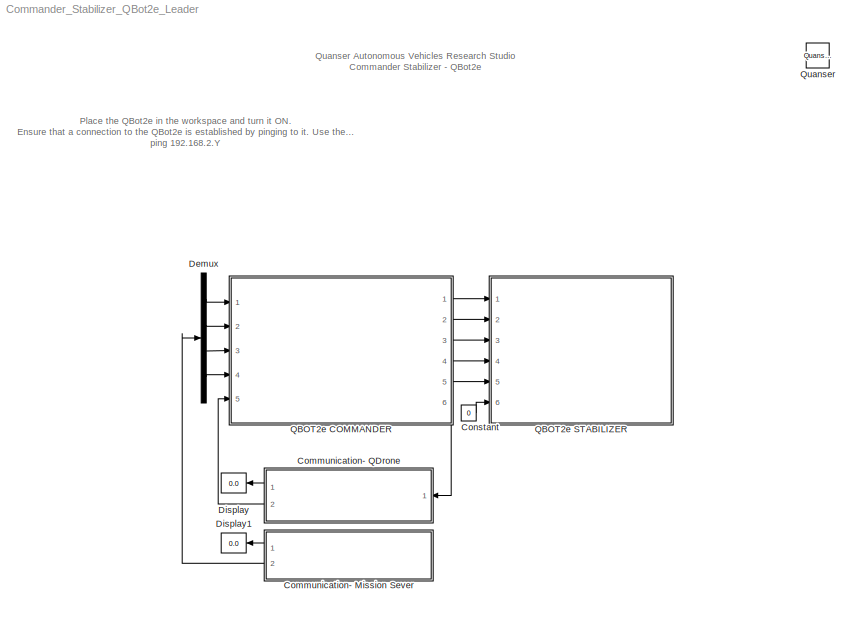
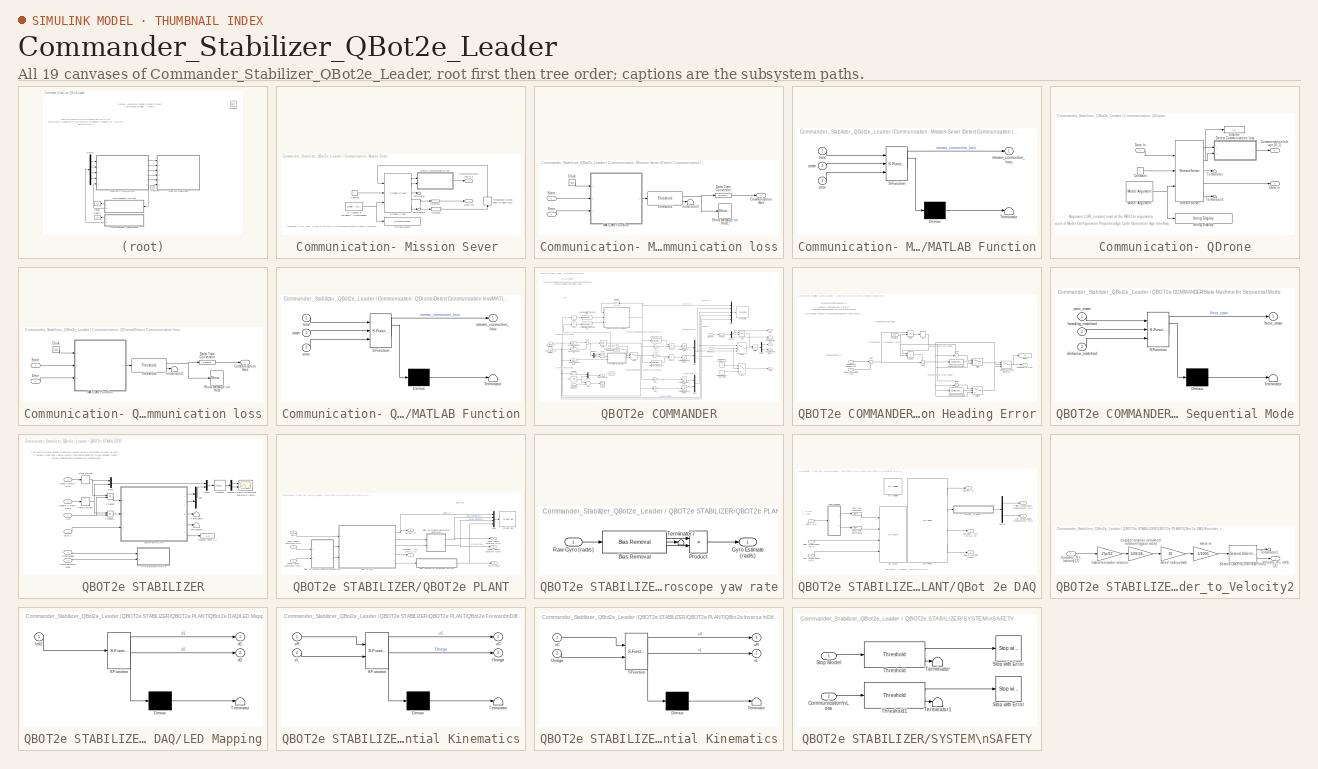
[diagram: thumbnail index - all 19 canvases of the model, root first then tree order]
MODEL Commander_Stabilizer_QBot2e_Leader
KIND model
BLOCK [SubSystem] Communication- Mission Sever 
  Ports = [0, 2]
  RequestExecContextInheritance = off
  SID = 394
BLOCK [Outport] Communication- Mission Sever /Communication\nIssue (0,1)
  IconDisplay = Port number
  SID = 6540
BLOCK [Constant] Communication- Mission Sever /Constant
  SID = 2649
BLOCK [Outport] Communication- Mission Sever /Data Out
  IconDisplay = Port number
  Port = 2
  SID = 6542
BLOCK [SubSystem] Communication- Mission Sever /Detect Communication loss
  Ports = [2, 1]
  RequestExecContextInheritance = off
  SID = 6556
BLOCK [Clock] Communication- Mission Sever /Detect Communication loss/Clock
  SID = 6476
BLOCK [Outport] Communication- Mission Sever /Detect Communication loss/Communication Issue
  IconDisplay = Port number
  SID = 6560
BLOCK [DataTypeConversion] Communication- Mission Sever /Detect Communication loss/Data Type Conversion
  RndMeth = Floor
  SID = 5201
  SaturateOnIntegerOverflow = off
BLOCK [Inport] Communication- Mission Sever /Detect Communication loss/Error
  IconDisplay = Port number
  Port = 2
  SID = 6558
BLOCK [SubSystem] Communication- Mission Sever /Detect Communication loss/MATLAB Function
  ErrorFcn = Stateflow.Translate.translate
  PermitHierarchicalResolution = ExplicitOnly
  Ports = [3, 1]
  RequestExecContextInheritance = off
  SFBlockType = MATLAB Function
  SID = 6473
  TreatAsAtomicUnit = on
BLOCK [Demux] Communication- Mission Sever /Detect Communication loss/MATLAB Function/ Demux 
  DisplayOption = bar
  Outputs = 1
  Ports = [1, 1]
  SID = 6473::68
BLOCK [S-Function] Communication- Mission Sever /Detect Communication loss/MATLAB Function/ SFunction 
  EnableBusSupport = off
  FunctionName = sf_sfun
  PortCounts = [3 2]
  Ports = [3, 2]
  SFcnIsStateOwnerBlock = off
  SFunctionDeploymentMode = off
  SID = 6473::67
  Tag = Stateflow S-Function Commander_Stabilizer_QBot2e_Leader 3
BLOCK [Terminator] Communication- Mission Sever /Detect Communication loss/MATLAB Function/ Terminator 
  SID = 6473::69
BLOCK [Inport] Communication- Mission Sever /Detect Communication loss/MATLAB Function/error
  IconDisplay = Port number
  Port = 3
  SID = 6473::23
BLOCK [Inport] Communication- Mission Sever /Detect Communication loss/MATLAB Function/state
  IconDisplay = Port number
  Port = 2
  SID = 6473::22
BLOCK [Outport] Communication- Mission Sever /Detect Communication loss/MATLAB Function/stream_connection_loss
  IconDisplay = Port number
  SID = 6473::5
BLOCK [Inport] Communication- Mission Sever /Detect Communication loss/MATLAB Function/time
  IconDisplay = Port number
  SID = 6473::1
BLOCK [Reference] Communication- Mission Sever /Detect Communication loss/Show Message on Host1  REF=quarc_library/Sinks/Error Handling/Show Message on Host
  AttributesFormatString = \"%<message>\"
  MultiThreadCoSim = auto
  Ports = [1]
  SID = 8053
  SourceBlock = quarc_library/Sinks/Error Handling/Show Message on Host
  SourceProductName = QUARC Targets
  SourceType = Host Show Message
  message = Not connection between QBot2e and Mission Server
  message_icon = Warning
  message_type = Fixed error message
BLOCK [Inport] Communication- Mission Sever /Detect Communication loss/State
  IconDisplay = Port number
  SID = 6557
BLOCK [Terminator] Communication- Mission Sever /Detect Communication loss/Terminator2
  SID = 5193
BLOCK [Reference] Communication- Mission Sever /Detect Communication loss/Threshold  REF=quarc_library/Discontinuities/Threshold
  Ports = [1, 2]
  RTWMemSecDataConstants = Inherit from model
  RTWMemSecDataInternal = Inherit from model
  RTWMemSecDataParameters = Inherit from model
  RTWMemSecFuncExecute = Inherit from model
  RTWMemSecFuncInitTerm = Inherit from model
  SID = 5195
  SourceBlock = quarc_library/Discontinuities/Threshold
  SourceProductName = QUARC Targets
  SourceType = Threshold
  duration = 0.1
  operator = >=
  param_src = Specify via dialog
  threshold = 0.5
BLOCK [Reference] Communication- Mission Sever /IP Address of \nSupervisory Model\n(Mission Operator//Commander)  REF=quarc_library/Sources/Signals/Model Argument
  AttributesFormatString = (-%<argument_name>)
  MultiThreadCoSim = auto
  Ports = [0, 1]
  SID = 5177
  SourceBlock = quarc_library/Sources/Signals/Model Argument
  SourceProductName = QUARC Targets
  SourceType = Model Argument
  argument_name = URI_Host
  data_type = char
  data_type_mode = Specify via dialog
  default_value = 0
  has_value = on
  max_length = 80
  variable_size = off
BLOCK [Selector] Communication- Mission Sever /Selector
  IndexOptions = Index vector (dialog)
  Indices = [14]
  InputPortWidth = 14
  OutputSizes = 1
  Ports = [1, 1]
  SID = 8084
BLOCK [Selector] Communication- Mission Sever /Selector1
  IndexOptions = Index vector (dialog)
  Indices = [1:13]
  InputPortWidth = 14
  OutputSizes = 1
  Ports = [1, 1]
  SID = 8100
BLOCK [Reference] Communication- Mission Sever /Stream Client  REF=quarc_library/Communications/Basic/Stream Client
  MultiThreadCoSim = auto
  Ports = [3, 5]
  SID = 410
  SourceBlock = quarc_library/Communications/Basic/Stream Client
  SourceProductName = The database <userpath><path> is locked, or a table in the database is locked. (database is locked)
  SourceType = Stream Client
  active = off
  apply_uri_to_all_configs = on
  byte_order = little endian (Intel - LSB first)
  data_type = double
  default_value = zeros(1,14)
  implementation = Use blocking I/O in a separate thread
  max_dimensions = -1
  optimization = Minimum latency
  receive_buffer_size = 1460
  receive_dimensions = off
  receive_fifo_size = 1
  receive_options = Receive most recent data
  receive_priority = 0
  sample_time = qc_get_step_size
  send_buffer_size = 1460
  send_dimensions = off
  send_fifo_size = 1
  send_options = Send most recent data
  send_priority = 0
  type_expr = BusObject
  uri = tcpip://localhost:18999
  uri_source = External input port
BLOCK [Reference] Communication- Mission Sever /String Display  REF=quarc_library/Strings/String Display
  MultiThreadCoSim = auto
  Ports = [1]
  SID = 5178
  SourceBlock = quarc_library/Strings/String Display
  SourceProductName = QUARC Targets
  SourceType = String Display
  alignment = center
  display_mode = Single line
  sample_time = -1
  use_new = off
BLOCK [Terminator] Communication- Mission Sever /Terminator
  SID = 411
BLOCK [Terminator] Communication- Mission Sever /Terminator1
  SID = 5205
BLOCK [Memory] Communication- Mission Sever /Timestamp to send back \nfor loopback time 
  SID = 8085
BLOCK [SubSystem] Communication- QDrone
  Ports = [1, 2]
  RequestExecContextInheritance = off
  SID = 8017
BLOCK [Outport] Communication- QDrone/Communication\nIssue (0,1)
  IconDisplay = Port number
  SID = 8035
BLOCK [Constant] Communication- QDrone/Constant
  SID = 8019
BLOCK [Inport] Communication- QDrone/Data In
  IconDisplay = Port number
  SID = 8018
BLOCK [Outport] Communication- QDrone/Data in
  IconDisplay = Port number
  Port = 2
  SID = 8102
BLOCK [SubSystem] Communication- QDrone/Detect Communication loss
  Ports = [2, 1]
  RequestExecContextInheritance = off
  SID = 8021
BLOCK [Clock] Communication- QDrone/Detect Communication loss/Clock
  SID = 8024
BLOCK [Outport] Communication- QDrone/Detect Communication loss/Communication Issue
  IconDisplay = Port number
  SID = 8029
BLOCK [DataTypeConversion] Communication- QDrone/Detect Communication loss/Data Type Conversion
  RndMeth = Floor
  SID = 8025
  SaturateOnIntegerOverflow = off
BLOCK [Inport] Communication- QDrone/Detect Communication loss/Error
  IconDisplay = Port number
  Port = 2
  SID = 8023
BLOCK [SubSystem] Communication- QDrone/Detect Communication loss/MATLAB Function
  ErrorFcn = Stateflow.Translate.translate
  PermitHierarchicalResolution = ExplicitOnly
  Ports = [3, 1]
  RequestExecContextInheritance = off
  SFBlockType = MATLAB Function
  SID = 8026
  TreatAsAtomicUnit = on
BLOCK [Demux] Communication- QDrone/Detect Communication loss/MATLAB Function/ Demux 
  DisplayOption = bar
  Outputs = 1
  Ports = [1, 1]
  SID = 8026::68
BLOCK [S-Function] Communication- QDrone/Detect Communication loss/MATLAB Function/ SFunction 
  EnableBusSupport = off
  FunctionName = sf_sfun
  PortCounts = [3 2]
  Ports = [3, 2]
  SFcnIsStateOwnerBlock = off
  SFunctionDeploymentMode = off
  SID = 8026::67
  Tag = Stateflow S-Function Commander_Stabilizer_QBot2e_Leader 5
BLOCK [Terminator] Communication- QDrone/Detect Communication loss/MATLAB Function/ Terminator 
  SID = 8026::69
BLOCK [Inport] Communication- QDrone/Detect Communication loss/MATLAB Function/error
  IconDisplay = Port number
  Port = 3
  SID = 8026::23
BLOCK [Inport] Communication- QDrone/Detect Communication loss/MATLAB Function/state
  IconDisplay = Port number
  Port = 2
  SID = 8026::22
BLOCK [Outport] Communication- QDrone/Detect Communication loss/MATLAB Function/stream_connection_loss
  IconDisplay = Port number
  SID = 8026::5
BLOCK [Inport] Communication- QDrone/Detect Communication loss/MATLAB Function/time
  IconDisplay = Port number
  SID = 8026::1
BLOCK [Reference] Communication- QDrone/Detect Communication loss/Show Message on Host  REF=quarc_library/Sinks/Error Handling/Show Message on Host
  AttributesFormatString = \"%<message>\"
  MultiThreadCoSim = auto
  Ports = [1]
  SID = 8051
  SourceBlock = quarc_library/Sinks/Error Handling/Show Message on Host
  SourceProductName = QUARC Targets
  SourceType = Host Show Message
  message = No connection between QBot2e and QDrone
  message_icon = Warning
  message_type = Fixed error message
BLOCK [Inport] Communication- QDrone/Detect Communication loss/State
  IconDisplay = Port number
  SID = 8022
BLOCK [Terminator] Communication- QDrone/Detect Communication loss/Terminator2
  SID = 8027
BLOCK [Reference] Communication- QDrone/Detect Communication loss/Threshold  REF=quarc_library/Discontinuities/Threshold
  Ports = [1, 2]
  RTWMemSecDataConstants = Inherit from model
  RTWMemSecDataInternal = Inherit from model
  RTWMemSecDataParameters = Inherit from model
  RTWMemSecFuncExecute = Inherit from model
  RTWMemSecFuncInitTerm = Inherit from model
  SID = 8028
  SourceBlock = quarc_library/Discontinuities/Threshold
  SourceProductName = QUARC Targets
  SourceType = Threshold
  duration = 0.1
  operator = >=
  param_src = Specify via dialog
  threshold = 0.5
BLOCK [Display] Communication- QDrone/Display
  Decimation = 1
  Ports = [1]
  SID = 8089
BLOCK [Reference] Communication- QDrone/Model Argument  REF=quarc_library/Sources/Signals/Model Argument
  AttributesFormatString = (-%<argument_name>)
  MultiThreadCoSim = auto
  Ports = [0, 1]
  SID = 8112
  SourceBlock = quarc_library/Sources/Signals/Model Argument
  SourceProductName = QUARC Targets
  SourceType = Model Argument
  argument_name = URI_Leader
  data_type = char
  data_type_mode = Specify via dialog
  default_value = 0
  has_value = on
  max_length = 80
  variable_size = off
BLOCK [Reference] Communication- QDrone/Stream Server  REF=quarc_library/Communications/Basic/Stream Server
  MultiThreadCoSim = auto
  Ports = [3, 5]
  SID = 8064
  SourceBlock = quarc_library/Communications/Basic/Stream Server
  SourceProductName = QUARC Targets
  SourceType = Stream Server
  active = off
  apply_uri_to_all_configs = on
  byte_order = little endian (Intel - LSB first)
  data_type = Inherited via back propagation
  default_value = zeros(1,1)
  implementation = Use blocking I/O in a separate thread
  max_dimensions = -1
  optimization = Minimum latency
  receive_buffer_size = 1460
  receive_dimensions = off
  receive_fifo_size = 1000
  receive_options = Receive most recent data
  receive_priority = 0
  sample_time = qc_get_step_size
  send_buffer_size = 1460
  send_dimensions = off
  send_fifo_size = 1000
  send_options = Send most recent data
  send_priority = 0
  type_expr = BusObject
  uri = tcpip://localhost:18001
  uri_source = External input port
BLOCK [Reference] Communication- QDrone/String Display   REF=quarc_library/Strings/String Display
  MultiThreadCoSim = auto
  Ports = [1]
  SID = 8114
  SourceBlock = quarc_library/Strings/String Display
  SourceProductName = QUARC Targets
  SourceType = String Display
  alignment = center
  display_mode = Single line
  sample_time = -1
  use_new = off
BLOCK [Terminator] Communication- QDrone/Terminator
  SID = 8033
BLOCK [Terminator] Communication- QDrone/Terminator1
  SID = 8034
BLOCK [Constant] Constant
  SID = 8012
  Value = 0
BLOCK [Demux] Demux
  DisplayOption = bar
  Outputs = [ 4 4 4 1]
  Ports = [1, 4]
  SID = 8002
BLOCK [Display] Display
  Decimation = 1
  Ports = [1]
  SID = 8043
BLOCK [Display] Display1
  Decimation = 1
  Ports = [1]
  SID = 8058
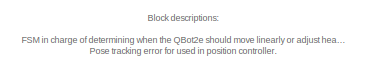
[diagram: QBOT2e COMMANDER - part 1/2, top left region]
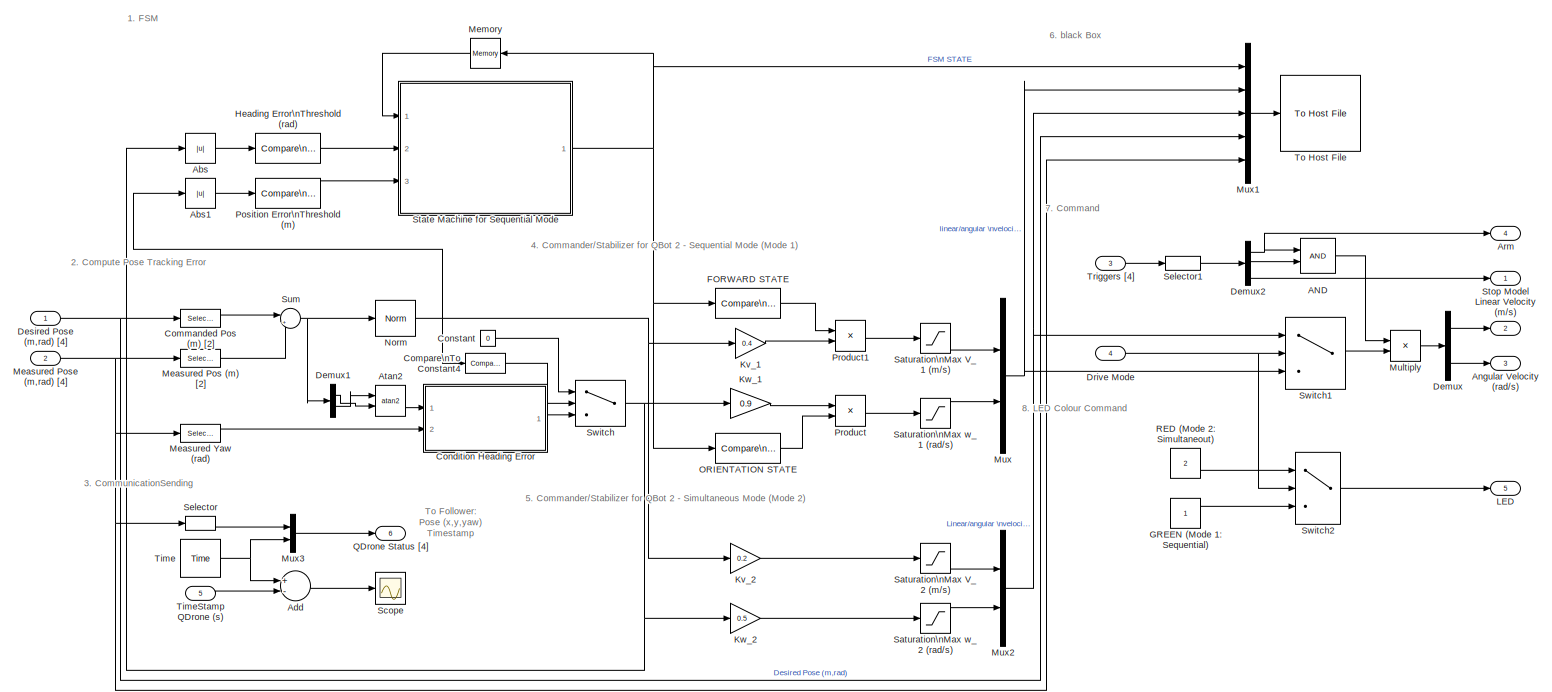
[diagram: QBOT2e COMMANDER - part 2/2, most of the canvas]
BLOCK [SubSystem] QBOT2e COMMANDER
  Ports = [5, 6]
  RequestExecContextInheritance = off
  SID = 7905
BLOCK [Logic] QBOT2e COMMANDER/AND
  AllPortsSameDT = off
  OutDataTypeStr = boolean
  Ports = [2, 1]
  SID = 8056
BLOCK [Abs] QBOT2e COMMANDER/Abs
  SID = 7932
  SaturateOnIntegerOverflow = off
BLOCK [Abs] QBOT2e COMMANDER/Abs1
  SID = 7933
  SaturateOnIntegerOverflow = off
BLOCK [Sum] QBOT2e COMMANDER/Add
  InputSameDT = off
  Inputs = +-
  OutDataTypeStr = Inherit: Inherit via internal rule
  Ports = [2, 1]
  SID = 8104
  SaturateOnIntegerOverflow = off
BLOCK [Outport] QBOT2e COMMANDER/Angular Velocity (rad//s)
  IconDisplay = Port number
  Port = 3
  SID = 7909
BLOCK [Outport] QBOT2e COMMANDER/Arm
  IconDisplay = Port number
  Port = 4
  SID = 8016
BLOCK [Trigonometry] QBOT2e COMMANDER/Atan2
  Operator = atan2
  Ports = [2, 1]
  SID = 7938
BLOCK [Selector] QBOT2e COMMANDER/Commanded Pos (m) [2]
  IndexOptions = Index vector (dialog)
  Indices = [1,2]
  InputPortWidth = 4
  OutputSizes = 1
  Ports = [1, 1]
  SID = 7939
BLOCK [Reference] QBOT2e COMMANDER/Compare\nTo Constant4  REF=simulink/Logic and Bit\nOperations/Compare\nTo Constant
  OutDataTypeStr = uint8
  Ports = [1, 1]
  RTWMemSecDataConstants = Inherit from model
  RTWMemSecDataInternal = Inherit from model
  RTWMemSecDataParameters = Inherit from model
  RTWMemSecFuncExecute = Inherit from model
  RTWMemSecFuncInitTerm = Inherit from model
  SID = 7940
  SourceBlock = simulink/Logic and Bit\nOperations/Compare\nTo Constant
  SourceProductBaseCode = SL
  SourceType = Compare To Constant
  ZeroCross = on
  const = 0.05
  relop = <=
BLOCK [SubSystem] QBOT2e COMMANDER/Condition Heading Error
  Ports = [2, 1]
  RequestExecContextInheritance = off
  SID = 7941
BLOCK [Inport] QBOT2e COMMANDER/Condition Heading Error/Commanded Heading (rad)
  IconDisplay = Port number
  SID = 7942
BLOCK [Reference] QBOT2e COMMANDER/Condition Heading Error/Compare\nTo Constant  REF=simulink/Logic and Bit\nOperations/Compare\nTo Constant
  OutDataTypeStr = boolean
  Ports = [1, 1]
  RTWMemSecDataConstants = Inherit from model
  RTWMemSecDataInternal = Inherit from model
  RTWMemSecDataParameters = Inherit from model
  RTWMemSecFuncExecute = Inherit from model
  RTWMemSecFuncInitTerm = Inherit from model
  SID = 7944
  SourceBlock = simulink/Logic and Bit\nOperations/Compare\nTo Constant
  SourceProductBaseCode = SL
  SourceType = Compare To Constant
  ZeroCross = on
  const = pi
  relop = >=
BLOCK [Reference] QBOT2e COMMANDER/Condition Heading Error/Compare\nTo Constant1  REF=simulink/Logic and Bit\nOperations/Compare\nTo Constant
  OutDataTypeStr = boolean
  Ports = [1, 1]
  RTWMemSecDataConstants = Inherit from model
  RTWMemSecDataInternal = Inherit from model
  RTWMemSecDataParameters = Inherit from model
  RTWMemSecFuncExecute = Inherit from model
  RTWMemSecFuncInitTerm = Inherit from model
  SID = 7945
  SourceBlock = simulink/Logic and Bit\nOperations/Compare\nTo Constant
  SourceProductBaseCode = SL
  SourceType = Compare To Constant
  ZeroCross = on
  const = -pi
  relop = <=
BLOCK [Constant] QBOT2e COMMANDER/Condition Heading Error/Constant
  SID = 7946
  Value = 2*pi
BLOCK [Display] QBOT2e COMMANDER/Condition Heading Error/Display
  Decimation = 1
  Ports = [1]
  SID = 8071
BLOCK [Product] QBOT2e COMMANDER/Condition Heading Error/Divide
  InputSameDT = off
  Inputs = */
  OutDataTypeStr = Inherit: Inherit via internal rule
  Ports = [2, 1]
  RndMeth = Floor
  SID = 7947
  SaturateOnIntegerOverflow = off
BLOCK [Rounding] QBOT2e COMMANDER/Condition Heading Error/Fix
  Operator = fix
  SID = 7948
BLOCK [Outport] QBOT2e COMMANDER/Condition Heading Error/Heading Error (rad)
  IconDisplay = Port number
  SID = 7957
BLOCK [Inport] QBOT2e COMMANDER/Condition Heading Error/Measured Heading (rad)
  IconDisplay = Port number
  Port = 2
  SID = 7943
BLOCK [Product] QBOT2e COMMANDER/Condition Heading Error/Product
  InputSameDT = off
  OutDataTypeStr = Inherit: Inherit via internal rule
  Ports = [2, 1]
  RndMeth = Floor
  SID = 7949
  SaturateOnIntegerOverflow = off
BLOCK [Switch] QBOT2e COMMANDER/Condition Heading Error/Select Proper\nHeading Error
  Criteria = u2 > Threshold
  InputSameDT = off
  SID = 7950
  SaturateOnIntegerOverflow = off
BLOCK [Sum] QBOT2e COMMANDER/Condition Heading Error/Sum
  IconShape = round
  InputSameDT = off
  Inputs = |+-
  OutDataTypeStr = Inherit: Inherit via internal rule
  Ports = [2, 1]
  SID = 7951
  SaturateOnIntegerOverflow = off
BLOCK [Sum] QBOT2e COMMANDER/Condition Heading Error/Sum1
  IconShape = round
  InputSameDT = off
  Inputs = -+|
  OutDataTypeStr = Inherit: Inherit via internal rule
  Ports = [2, 1]
  SID = 7952
  SaturateOnIntegerOverflow = off
BLOCK [Sum] QBOT2e COMMANDER/Condition Heading Error/Sum2
  IconShape = round
  InputSameDT = off
  Inputs = -+|
  OutDataTypeStr = Inherit: Inherit via internal rule
  Ports = [2, 1]
  SID = 7953
  SaturateOnIntegerOverflow = off
BLOCK [Sum] QBOT2e COMMANDER/Condition Heading Error/Sum3
  IconShape = round
  InputSameDT = off
  Inputs = ++|
  OutDataTypeStr = Inherit: Inherit via internal rule
  Ports = [2, 1]
  SID = 7954
  SaturateOnIntegerOverflow = off
BLOCK [Switch] QBOT2e COMMANDER/Condition Heading Error/Switch
  Criteria = u2 > Threshold
  InputSameDT = off
  SID = 7955
  SaturateOnIntegerOverflow = off
  Threshold = 0.5
BLOCK [Switch] QBOT2e COMMANDER/Condition Heading Error/Switch1
  Criteria = u2 > Threshold
  InputSameDT = off
  SID = 7956
  SaturateOnIntegerOverflow = off
  Threshold = 0.5
BLOCK [Constant] QBOT2e COMMANDER/Constant
  SID = 7964
  Value = 0
BLOCK [Demux] QBOT2e COMMANDER/Demux
  DisplayOption = bar
  Outputs = 2
  Ports = [1, 2]
  SID = 7990
BLOCK [Demux] QBOT2e COMMANDER/Demux1
  DisplayOption = bar
  Outputs = 2
  Ports = [1, 2]
  SID = 7965
BLOCK [Demux] QBOT2e COMMANDER/Demux2
  DisplayOption = bar
  Outputs = 3
  Ports = [1, 3]
  SID = 8057
BLOCK [Inport] QBOT2e COMMANDER/Desired Pose (m,rad) [4]
  IconDisplay = Port number
  SID = 7906
BLOCK [Inport] QBOT2e COMMANDER/Drive Mode 
  IconDisplay = Port number
  Port = 4
  SID = 7937
BLOCK [Reference] QBOT2e COMMANDER/FORWARD STATE  REF=simulink/Logic and Bit\nOperations/Compare\nTo Constant
  OutDataTypeStr = uint8
  Ports = [1, 1]
  RTWMemSecDataConstants = Inherit from model
  RTWMemSecDataInternal = Inherit from model
  RTWMemSecDataParameters = Inherit from model
  RTWMemSecFuncExecute = Inherit from model
  RTWMemSecFuncInitTerm = Inherit from model
  SID = 7980
  SourceBlock = simulink/Logic and Bit\nOperations/Compare\nTo Constant
  SourceProductBaseCode = SL
  SourceType = Compare To Constant
  ZeroCross = on
  const = 2
  relop = ==
BLOCK [Constant] QBOT2e COMMANDER/GREEN (Mode 1: Sequential)
  SID = 8011
BLOCK [Reference] QBOT2e COMMANDER/Heading Error\nThreshold (rad)  REF=simulink/Logic and Bit\nOperations/Compare\nTo Constant
  OutDataTypeStr = boolean
  Ports = [1, 1]
  RTWMemSecDataConstants = Inherit from model
  RTWMemSecDataInternal = Inherit from model
  RTWMemSecDataParameters = Inherit from model
  RTWMemSecFuncExecute = Inherit from model
  RTWMemSecFuncInitTerm = Inherit from model
  SID = 7934
  SourceBlock = simulink/Logic and Bit\nOperations/Compare\nTo Constant
  SourceProductBaseCode = SL
  SourceType = Compare To Constant
  ZeroCross = on
  const = 10*pi/180
  relop = <=
BLOCK [Gain] QBOT2e COMMANDER/Kv_1
  Gain = 0.4
  OutDataTypeStr = Inherit: Inherit via internal rule
  ParamDataTypeStr = Inherit: Inherit via internal rule
  SID = 7981
  SaturateOnIntegerOverflow = off
BLOCK [Gain] QBOT2e COMMANDER/Kv_2
  Gain = 0.2
  OutDataTypeStr = Inherit: Inherit via internal rule
  ParamDataTypeStr = Inherit: Inherit via internal rule
  SID = 7992
  SaturateOnIntegerOverflow = off
BLOCK [Gain] QBOT2e COMMANDER/Kw_1
  Gain = 0.9
  OutDataTypeStr = Inherit: Inherit via internal rule
  ParamDataTypeStr = Inherit: Inherit via internal rule
  SID = 7982
  SaturateOnIntegerOverflow = off
BLOCK [Gain] QBOT2e COMMANDER/Kw_2
  Gain = 0.5
  OutDataTypeStr = Inherit: Inherit via internal rule
  ParamDataTypeStr = Inherit: Inherit via internal rule
  SID = 7993
  SaturateOnIntegerOverflow = off
BLOCK [Outport] QBOT2e COMMANDER/LED
  IconDisplay = Port number
  Port = 5
  SID = 7911
BLOCK [Outport] QBOT2e COMMANDER/Linear Velocity (m//s)
  IconDisplay = Port number
  Port = 2
  SID = 7908
BLOCK [Selector] QBOT2e COMMANDER/Measured Pos (m) [2]
  IndexOptions = Index vector (dialog)
  Indices = [1,2]
  InputPortWidth = 4
  OutputSizes = 1
  Ports = [1, 1]
  SID = 7968
BLOCK [Inport] QBOT2e COMMANDER/Measured Pose (m,rad) [4]
  IconDisplay = Port number
  Port = 2
  SID = 7926
BLOCK [Selector] QBOT2e COMMANDER/Measured Yaw (rad)
  IndexOptions = Index vector (dialog)
  Indices = [4]
  InputPortWidth = 4
  OutputSizes = 1
  Ports = [1, 1]
  SID = 7969
BLOCK [Reference] QBOT2e COMMANDER/Memory  REF=quarc_library/Discrete/Memory
  MultiThreadCoSim = auto
  Ports = [1, 1]
  SID = 7997
  SourceBlock = quarc_library/Discrete/Memory
  SourceProductName = QUARC Targets
  SourceType = Memory
  initial_condition = 0
  sample_time = -1
BLOCK [Product] QBOT2e COMMANDER/Multiply
  InputSameDT = off
  OutDataTypeStr = Inherit: Inherit via internal rule
  Ports = [2, 1]
  RndMeth = Floor
  SID = 8001
  SaturateOnIntegerOverflow = off
BLOCK [Mux] QBOT2e COMMANDER/Mux
  DisplayOption = bar
  Inputs = 2
  Ports = [2, 1]
  SID = 7991
BLOCK [Mux] QBOT2e COMMANDER/Mux1
  DisplayOption = bar
  Inputs = 5
  Ports = [5, 1]
  SID = 8000
BLOCK [Mux] QBOT2e COMMANDER/Mux2
  DisplayOption = bar
  Inputs = 2
  Ports = [2, 1]
  SID = 7994
BLOCK [Mux] QBOT2e COMMANDER/Mux3
  DisplayOption = bar
  Inputs = 2
  Ports = [2, 1]
  SID = 8046
BLOCK [Reference] QBOT2e COMMANDER/Norm  REF=quarc_library/Math Operations/Vectors/Norm
  Ports = [1, 1]
  RTWMemSecDataConstants = Inherit from model
  RTWMemSecDataInternal = Inherit from model
  RTWMemSecDataParameters = Inherit from model
  RTWMemSecFuncExecute = Inherit from model
  RTWMemSecFuncInitTerm = Inherit from model
  SID = 7970
  SourceBlock = quarc_library/Math Operations/Vectors/Norm
  SourceProductName = QUARC Targets
  SourceType = Norm
BLOCK [Reference] QBOT2e COMMANDER/ORIENTATION STATE  REF=simulink/Logic and Bit\nOperations/Compare\nTo Constant
  OutDataTypeStr = uint8
  Ports = [1, 1]
  RTWMemSecDataConstants = Inherit from model
  RTWMemSecDataInternal = Inherit from model
  RTWMemSecDataParameters = Inherit from model
  RTWMemSecFuncExecute = Inherit from model
  RTWMemSecFuncInitTerm = Inherit from model
  SID = 7983
  SourceBlock = simulink/Logic and Bit\nOperations/Compare\nTo Constant
  SourceProductBaseCode = SL
  SourceType = Compare To Constant
  ZeroCross = on
  const = 1
  relop = ==
BLOCK [Reference] QBOT2e COMMANDER/Position Error\nThreshold (m)  REF=simulink/Logic and Bit\nOperations/Compare\nTo Constant
  OutDataTypeStr = boolean
  Ports = [1, 1]
  RTWMemSecDataConstants = Inherit from model
  RTWMemSecDataInternal = Inherit from model
  RTWMemSecDataParameters = Inherit from model
  RTWMemSecFuncExecute = Inherit from model
  RTWMemSecFuncInitTerm = Inherit from model
  SID = 7935
  SourceBlock = simulink/Logic and Bit\nOperations/Compare\nTo Constant
  SourceProductBaseCode = SL
  SourceType = Compare To Constant
  ZeroCross = on
  const = 0.1
  relop = <=
BLOCK [Product] QBOT2e COMMANDER/Product
  InputSameDT = off
  OutDataTypeStr = Inherit: Inherit via internal rule
  Ports = [2, 1]
  RndMeth = Floor
  SID = 7984
  SaturateOnIntegerOverflow = off
BLOCK [Product] QBOT2e COMMANDER/Product1
  InputSameDT = off
  OutDataTypeStr = Inherit: Inherit via internal rule
  Ports = [2, 1]
  RndMeth = Floor
  SID = 7985
  SaturateOnIntegerOverflow = off
BLOCK [Outport] QBOT2e COMMANDER/QDrone Status [4]
  IconDisplay = Port number
  Port = 6
  SID = 8040
BLOCK [Constant] QBOT2e COMMANDER/RED (Mode 2: Simultaneout)
  SID = 8010
  Value = 2
BLOCK [Saturate] QBOT2e COMMANDER/Saturation\nMax V_1 (m//s)
  InputPortMap = u0
  Ports = [1, 1]
  SID = 7986
BLOCK [Saturate] QBOT2e COMMANDER/Saturation\nMax V_2 (m//s)
  InputPortMap = u0
  Ports = [1, 1]
  SID = 7995
BLOCK [Saturate] QBOT2e COMMANDER/Saturation\nMax w_1 (rad//s)
  InputPortMap = u0
  LowerLimit = -3
  Ports = [1, 1]
  SID = 7987
  UpperLimit = 3
BLOCK [Saturate] QBOT2e COMMANDER/Saturation\nMax w_2 (rad//s)
  InputPortMap = u0
  LowerLimit = -1
  Ports = [1, 1]
  SID = 7996
  UpperLimit = 1
BLOCK [Scope] QBOT2e COMMANDER/Scope
  Floating = off
  NumInputPorts = 1
  Ports = [1]
  SID = 8111
  ScopeSpecificationString = Simulink.scopes.TimeScopeBlockCfg('CurrentConfiguration', extmgr.ConfigurationSet(extmgr.Configuration('Core','General UI',true),extmgr.Configuration('Core','Source UI',true),extmgr.Configuration('Sources','WiredSimulink',true,'DataLoggingVariableName','ScopeData1'),extmgr.Configuration('Visuals','Time Domain',true,'SerializedDisplays',{struct('MinYLimReal','-0.00636','MaxYLimReal','0.02195','YLab...<+1435ch>
BLOCK [Selector] QBOT2e COMMANDER/Selector
  IndexOptions = Index vector (dialog)
  Indices = [1,2,4]
  InputPortWidth = 4
  OutputSizes = 1
  Ports = [1, 1]
  SID = 8039
BLOCK [Selector] QBOT2e COMMANDER/Selector1
  IndexOptions = Index vector (dialog)
  Indices = [1:3]
  InputPortWidth = 4
  OutputSizes = 1
  Ports = [1, 1]
  SID = 8115
BLOCK [SubSystem] QBOT2e COMMANDER/State Machine for Sequential Mode
  ErrorFcn = Stateflow.Translate.translate
  PermitHierarchicalResolution = ExplicitOnly
  Ports = [3, 1]
  RequestExecContextInheritance = off
  SFBlockType = MATLAB Function
  SID = 7936
  TreatAsAtomicUnit = on
BLOCK [Demux] QBOT2e COMMANDER/State Machine for Sequential Mode/ Demux 
  DisplayOption = bar
  Outputs = 1
  Ports = [1, 1]
  SID = 7936::64
BLOCK [S-Function] QBOT2e COMMANDER/State Machine for Sequential Mode/ SFunction 
  EnableBusSupport = off
  FunctionName = sf_sfun
  PortCounts = [3 2]
  Ports = [3, 2]
  SFcnIsStateOwnerBlock = off
  SFunctionDeploymentMode = off
  SID = 7936::63
  Tag = Stateflow S-Function Commander_Stabilizer_QBot2e_Leader 4
BLOCK [Terminator] QBOT2e COMMANDER/State Machine for Sequential Mode/ Terminator 
  SID = 7936::65
BLOCK [Outport] QBOT2e COMMANDER/State Machine for Sequential Mode/Next_state
  IconDisplay = Port number
  SID = 7936::5
BLOCK [Inport] QBOT2e COMMANDER/State Machine for Sequential Mode/distance_matched
  IconDisplay = Port number
  Port = 3
  SID = 7936::23
BLOCK [Inport] QBOT2e COMMANDER/State Machine for Sequential Mode/heading_matched
  IconDisplay = Port number
  Port = 2
  SID = 7936::22
BLOCK [Inport] QBOT2e COMMANDER/State Machine for Sequential Mode/prev_state
  IconDisplay = Port number
  SID = 7936::1
BLOCK [Outport] QBOT2e COMMANDER/Stop Model
  IconDisplay = Port number
  SID = 7907
BLOCK [Sum] QBOT2e COMMANDER/Sum
  IconShape = round
  InputSameDT = off
  Inputs = |+-
  OutDataTypeStr = Inherit: Inherit via internal rule
  Ports = [2, 1]
  SID = 7974
  SaturateOnIntegerOverflow = off
BLOCK [Switch] QBOT2e COMMANDER/Switch
  InputSameDT = off
  SID = 7975
  SaturateOnIntegerOverflow = off
  Threshold = 0.5
BLOCK [Switch] QBOT2e COMMANDER/Switch1
  Criteria = u2 > Threshold
  InputSameDT = off
  SID = 7989
  SaturateOnIntegerOverflow = off
  Threshold = 1
BLOCK [Switch] QBOT2e COMMANDER/Switch2
  Criteria = u2 > Threshold
  InputSameDT = off
  SID = 8009
  SaturateOnIntegerOverflow = off
  Threshold = 1
BLOCK [Reference] QBOT2e COMMANDER/Time  REF=quarc_library/Sources/Time/Time
  MultiThreadCoSim = auto
  Ports = [0, 1]
  SID = 8094
  SourceBlock = quarc_library/Sources/Time/Time
  SourceProductName = QUARC Targets
  SourceType = Time
  sample_time = qc_get_step_size
  time_source = Wall clock
BLOCK [Inport] QBOT2e COMMANDER/TimeStamp QDrone (s)
  IconDisplay = Port number
  Port = 5
  SID = 8103
BLOCK [Reference] QBOT2e COMMANDER/To Host File  REF=quarc_library/Sinks/To Host/To Host File
  AttributesFormatString = %<final_file_name>
  MultiThreadCoSim = auto
  Ports = [1]
  SID = 7999
  SourceBlock = quarc_library/Sinks/To Host/To Host File
  SourceProductName = QUARC Targets
  SourceType = To Host File
  append = off
  bitrate = 2000000
  decimation = 1
  file_format = MAT-file v.5
  file_name = saved_data/%m/QBot2e_Commander_%{date}_%{time}.mat
  final_file_name = saved_data/Commander_Stabilizer_QBot2e_Leader_r2028a/QBot2e_Commander_10-Jan-2022_14-58-38.mat
  options = No header or footer
  sample_time = -1
  variable_name = QBot2e_Commander
BLOCK [Inport] QBOT2e COMMANDER/Triggers [4]
  IconDisplay = Port number
  Port = 3
  SID = 7928
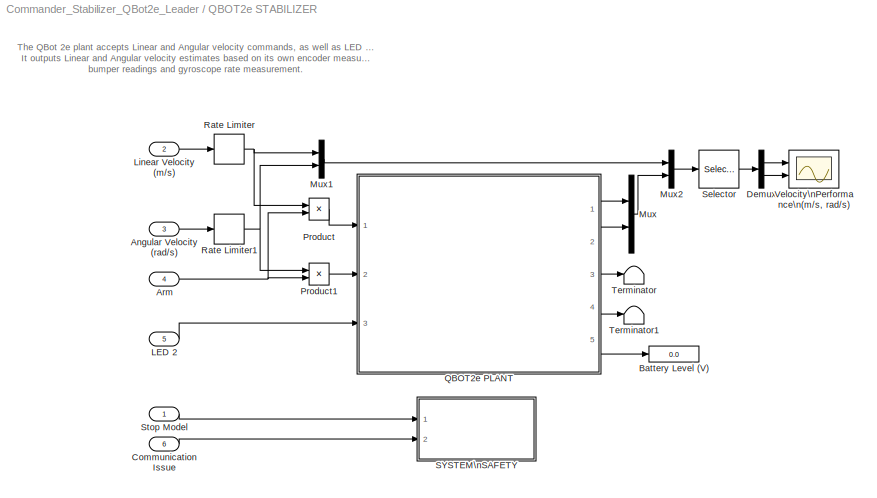
BLOCK [SubSystem] QBOT2e STABILIZER
  Ports = [6]
  RequestExecContextInheritance = off
  SID = 7771
BLOCK [Inport] QBOT2e STABILIZER/Angular Velocity (rad//s)
  IconDisplay = Port number
  Port = 3
  SID = 7773
BLOCK [Inport] QBOT2e STABILIZER/Arm
  IconDisplay = Port number
  Port = 4
  SID = 7824
BLOCK [Display] QBOT2e STABILIZER/Battery Level (V)
  Ports = [1]
  SID = 7778
BLOCK [Inport] QBOT2e STABILIZER/Communication Issue
  IconDisplay = Port number
  Port = 6
  SID = 7822
BLOCK [Demux] QBOT2e STABILIZER/Demux
  DisplayOption = bar
  Outputs = [2 2]
  Ports = [1, 2]
  SID = 7776
BLOCK [Inport] QBOT2e STABILIZER/LED 2
  IconDisplay = Port number
  Port = 5
  SID = 7775
BLOCK [Inport] QBOT2e STABILIZER/Linear Velocity (m//s)
  IconDisplay = Port number
  Port = 2
  SID = 7772
BLOCK [Mux] QBOT2e STABILIZER/Mux
  DisplayOption = bar
  Inputs = 2
  Ports = [2, 1]
  SID = 7882
BLOCK [Mux] QBOT2e STABILIZER/Mux1
  DisplayOption = bar
  Inputs = 2
  Ports = [2, 1]
  SID = 7780
BLOCK [Mux] QBOT2e STABILIZER/Mux2
  DisplayOption = bar
  Inputs = 2
  Ports = [2, 1]
  SID = 7781
BLOCK [Product] QBOT2e STABILIZER/Product
  InputSameDT = off
  OutDataTypeStr = Inherit: Inherit via internal rule
  Ports = [2, 1]
  RndMeth = Floor
  SID = 7832
  SaturateOnIntegerOverflow = off
BLOCK [Product] QBOT2e STABILIZER/Product1
  InputSameDT = off
  OutDataTypeStr = Inherit: Inherit via internal rule
  Ports = [2, 1]
  RndMeth = Floor
  SID = 7833
  SaturateOnIntegerOverflow = off
BLOCK [SubSystem] QBOT2e STABILIZER/QBOT2e PLANT
  Ports = [3, 5]
  RequestExecContextInheritance = off
  SID = 7782
BLOCK [Inport] QBOT2e STABILIZER/QBOT2e PLANT/Angular Velocity Command (rad//s)
  IconDisplay = Port number
  Port = 2
  SID = 7784
BLOCK [Outport] QBOT2e STABILIZER/QBOT2e PLANT/Angular Velocity Estimate (rad//s)
  IconDisplay = Port number
  Port = 2
  SID = 7849
BLOCK [Outport] QBOT2e STABILIZER/QBOT2e PLANT/Battery (V)
  IconDisplay = Port number
  Port = 5
  SID = 7809
BLOCK [SubSystem] QBOT2e STABILIZER/QBOT2e PLANT/Bias removal for gyroscope yaw rate
  Ports = [1, 1]
  RequestExecContextInheritance = off
  SID = 7869
BLOCK [Reference] QBOT2e STABILIZER/QBOT2e PLANT/Bias removal for gyroscope yaw rate/Bias Removal  REF=quarc_library/Discrete/Bias Removal
  Ports = [1, 3]
  RTWMemSecDataConstants = Inherit from model
  RTWMemSecDataInternal = Inherit from model
  RTWMemSecDataParameters = Inherit from model
  RTWMemSecFuncExecute = Inherit from model
  RTWMemSecFuncInitTerm = Inherit from model
  SID = 7787
  SourceBlock = quarc_library/Discrete/Bias Removal
  SourceProductName = QUARC Targets
  SourceType = Bias Removal
  end_time = 4
  sample_time = qc_get_step_size
  start_time = 3
  switch_id = 0
BLOCK [Outport] QBOT2e STABILIZER/QBOT2e PLANT/Bias removal for gyroscope yaw rate/Gyro Estimate (rad//s)
  IconDisplay = Port number
  SID = 7871
BLOCK [Product] QBOT2e STABILIZER/QBOT2e PLANT/Bias removal for gyroscope yaw rate/Product
  InputSameDT = off
  OutDataTypeStr = Inherit: Inherit via internal rule
  Ports = [2, 1]
  SID = 7805
  SaturateOnIntegerOverflow = off
BLOCK [Inport] QBOT2e STABILIZER/QBOT2e PLANT/Bias removal for gyroscope yaw rate/Raw Gyro (rad//s)
  IconDisplay = Port number
  SID = 7870
BLOCK [Terminator] QBOT2e STABILIZER/QBOT2e PLANT/Bias removal for gyroscope yaw rate/Terminator7
  SID = 7806
BLOCK [Outport] QBOT2e STABILIZER/QBOT2e PLANT/Bumpers - R C L\n(0,1) [3]
  IconDisplay = Port number
  Port = 4
  SID = 7810
BLOCK [Outport] QBOT2e STABILIZER/QBOT2e PLANT/Gyro (rad//s)
  IconDisplay = Port number
  Port = 3
  SID = 7808
BLOCK [Inport] QBOT2e STABILIZER/QBOT2e PLANT/LED 2
  IconDisplay = Port number
  Port = 3
  SID = 7786
BLOCK [Inport] QBOT2e STABILIZER/QBOT2e PLANT/Linear Velocity Command (m//s)
  IconDisplay = Port number
  SID = 7783
BLOCK [Outport] QBOT2e STABILIZER/QBOT2e PLANT/Linear Velocity Estimate (m//s)
  IconDisplay = Port number
  SID = 7807
BLOCK [Mux] QBOT2e STABILIZER/QBOT2e PLANT/Mux
  DisplayOption = bar
  Ports = [4, 1]
  SID = 8108
BLOCK [SubSystem] QBOT2e STABILIZER/QBOT2e PLANT/QBot 2e DAQ
  Ports = [3, 5]
  RequestExecContextInheritance = off
  SID = 7872
BLOCK [Outport] QBOT2e STABILIZER/QBOT2e PLANT/QBot 2e DAQ/Battery (V)
  IconDisplay = Port number
  SID = 7877
BLOCK [Outport] QBOT2e STABILIZER/QBOT2e PLANT/QBot 2e DAQ/Bumpers - R C L\n(0,1) [3]
  IconDisplay = Port number
  Port = 4
  SID = 7880
BLOCK [DataTypeConversion] QBOT2e STABILIZER/QBOT2e PLANT/QBot 2e DAQ/Data Type Conversion
  RndMeth = Floor
  SID = 7788
  SaturateOnIntegerOverflow = off
BLOCK [DataTypeConversion] QBOT2e STABILIZER/QBOT2e PLANT/QBot 2e DAQ/Data Type Conversion1
  RndMeth = Floor
  SID = 7789
  SaturateOnIntegerOverflow = off
BLOCK [Demux] QBOT2e STABILIZER/QBOT2e PLANT/QBot 2e DAQ/Demux
  DisplayOption = bar
  Outputs = 2
  Ports = [1, 2]
  SID = 7848
BLOCK [SubSystem] QBOT2e STABILIZER/QBOT2e PLANT/QBot 2e DAQ/Encoder_to_Velocity2
  Ports = [1, 1]
  RequestExecContextInheritance = off
  SID = 7792
BLOCK [Gain] QBOT2e STABILIZER/QBOT2e PLANT/QBot 2e DAQ/Encoder_to_Velocity2/ encoder rotation to\nwheel rotation\n(gear ratio)
  Gain = 1/49.5833
  OutDataTypeStr = Inherit: Inherit via internal rule
  ParamDataTypeStr = Inherit: Inherit via internal rule
  SID = 7794
  SaturateOnIntegerOverflow = off
BLOCK [Inport] QBOT2e STABILIZER/QBOT2e PLANT/QBot 2e DAQ/Encoder_to_Velocity2/Encoder - R L (counts) [2]
  IconDisplay = Port number
  SID = 7793
BLOCK [Reference] QBOT2e STABILIZER/QBOT2e PLANT/QBot 2e DAQ/Encoder_to_Velocity2/Second-Order\nLow-Pass Filter2  REF=quarc_library/Continuous/Second-Order\nLow-Pass Filter
  Ports = [1, 2]
  RTWMemSecDataConstants = Inherit from model
  RTWMemSecDataInternal = Inherit from model
  RTWMemSecDataParameters = Inherit from model
  RTWMemSecFuncExecute = Inherit from model
  RTWMemSecFuncInitTerm = Inherit from model
  SID = 7795
  SourceBlock = quarc_library/Continuous/Second-Order\nLow-Pass Filter
  SourceProductName = QUARC Targets
  SourceType = Second-Order Low-Pass Filter
  input_init = 0
  input_width = 10
  input_zeta = 1
  params_source = Internal (dialog parameters)
BLOCK [Terminator] QBOT2e STABILIZER/QBOT2e PLANT/QBot 2e DAQ/Encoder_to_Velocity2/Terminator1
  SID = 7796
BLOCK [Outport] QBOT2e STABILIZER/QBOT2e PLANT/QBot 2e DAQ/Encoder_to_Velocity2/Velocity - R L (m//s) [2]
  IconDisplay = Port number
  SID = 7800
BLOCK [Gain] QBOT2e STABILIZER/QBOT2e PLANT/QBot 2e DAQ/Encoder_to_Velocity2/mm to m
  Gain = 1/1000
  OutDataTypeStr = Inherit: Inherit via internal rule
  ParamDataTypeStr = Inherit: Inherit via internal rule
  SID = 7797
  SaturateOnIntegerOverflow = off
BLOCK [Gain] QBOT2e STABILIZER/QBOT2e PLANT/QBot 2e DAQ/Encoder_to_Velocity2/ticks to\nencoder rotation
  Gain = 2*pi/52
  OutDataTypeStr = Inherit: Inherit via internal rule
  ParamDataTypeStr = Inherit: Inherit via internal rule
  SID = 7798
  SaturateOnIntegerOverflow = off
BLOCK [Gain] QBOT2e STABILIZER/QBOT2e PLANT/QBot 2e DAQ/Encoder_to_Velocity2/wheel radius (mm)
  Gain = 35
  OutDataTypeStr = Inherit: Inherit via internal rule
  ParamDataTypeStr = Inherit: Inherit via internal rule
  SID = 7799
  SaturateOnIntegerOverflow = off
BLOCK [Reference] QBOT2e STABILIZER/QBOT2e PLANT/QBot 2e DAQ/HIL Initialize  REF=quarc_library/Data Acquisition/Generic/Configuration/HIL Initialize
  AttributesFormatString = %<object_name> (%<board_type>-%<board_number>)
  MultiThreadCoSim = auto
  Ports = []
  Priority = -99
  SID = 7801
  SourceBlock = quarc_library/Data Acquisition/Generic/Configuration/HIL Initialize
  SourceProductName = QUARC Targets
  SourceType = HIL Initialize
  UserData = DataTag1
  UserDataPersistent = on
  active = off
  analog_input_channels = [0:5]
  analog_input_configurations = []
  analog_input_maximums = [16.5 3.3 3.3 3.3 3.3 3.3]
  analog_input_minimums = [0 0 0 0 0 0]
  analog_output_channels = []
  analog_output_maximums = []
  analog_output_minimums = []
  board_number = 0
  board_options = pwm0_en=1;pwm0_pin=12;pwm1_en=1;pwm1_pin=13;
  board_type = qbot2e
  clock_modes = []
  digital_input_channels = [28:58]
  digital_output_channels = [28:31]
  digital_output_configuration = []
  encoder_channels = [0:1]
  encoder_filter_frequency = []
  exclusive = off
  final_analog_outputs = []
  final_digital_outputs = [0]
  final_other_outputs = [0 0 0 7]
  final_pwm_outputs = [0]
  hardware_clocks = []
  initial_analog_outputs = []
  initial_clock_frequencies = []
  initial_digital_outputs = [0]
  initial_encoder_counts = [0]
  initial_other_outputs = [0 0 0 7]
  initial_pwm_outputs = [0]
  object_name = HIL-1
  other_output_channels = [2000:2001 14000 16000]
  pwm_alignment = [0]
  pwm_channels = [0:1]
  pwm_configuration = [0]
  pwm_frequency = [20e6/1024]
  pwm_leading_deadband = []
  pwm_modes = 0
  pwm_polarity = [1]
  pwm_trailing_deadband = []
  quadrature = [4]
  set_analog_input_params_at_start = off
  set_analog_input_params_at_switch_in = off
  set_analog_output_params_at_start = off
  set_analog_output_params_at_switch_in = off
  set_analog_outputs_at_start = off
  set_analog_outputs_at_switch_in = off
  set_analog_outputs_at_switch_out = off
  set_analog_outputs_at_terminate = off
  set_analog_outputs_on_watchdog = off
  set_clock_frequencies_at_start = off
  set_clock_frequencies_at_switch_in = off
  set_clock_params_at_start = off
  set_clock_params_at_switch_in = off
  set_digital_output_params_at_start = off
  set_digital_output_params_at_switch_in = off
  set_digital_outputs_at_start = on
  set_digital_outputs_at_switch_in = off
  set_digital_outputs_at_switch_out = off
  set_digital_outputs_at_terminate = on
  set_digital_outputs_on_watchdog = off
  set_encoder_counts_at_start = on
  set_encoder_counts_at_switch_in = off
  set_encoder_params_at_start = on
  set_encoder_params_at_switch_in = off
  set_other_outputs_at_start = on
  set_other_outputs_at_switch_in = off
  set_other_outputs_at_switch_out = off
  set_other_outputs_at_terminate = on
  set_other_outputs_on_watchdog = off
  set_pwm_outputs_at_start = on
  set_pwm_outputs_at_switch_in = off
  set_pwm_outputs_at_switch_out = off
  set_pwm_outputs_at_terminate = on
  set_pwm_outputs_on_watchdog = off
  set_pwm_params_at_start = on
  set_pwm_params_at_switch_in = off
  watchdog_analog_outputs = []
  watchdog_digital_outputs = []
  watchdog_other_outputs = []
  watchdog_pwm_outputs = []
BLOCK [Reference] QBOT2e STABILIZER/QBOT2e PLANT/QBot 2e DAQ/HIL Read1  REF=quarc_library/Data Acquisition/Generic/Immediate I//O/HIL Read
  AttributesFormatString = (%<object_name>)
  MultiThreadCoSim = auto
  Ports = [0, 4]
  SID = 7802
  SourceBlock = quarc_library/Data Acquisition/Generic/Immediate I//O/HIL Read
  SourceProductName = QUARC Targets
  SourceType = HIL Read
  UserData = DataTag2
  UserDataPersistent = on
  active = on
  analog_channels = [0]
  data_type_mode = Inherit via back propagation
  digital_channels = [28:30]
  digital_data_type = boolean
  encoder_channels = [0:1]
  encoder_data_type = double
  object_name = HIL-1
  other_channels = [1002]
  sample_time = qc_get_step_size
  vector_output = on
BLOCK [Reference] QBOT2e STABILIZER/QBOT2e PLANT/QBot 2e DAQ/HIL Write  REF=quarc_library/Data Acquisition/Generic/Immediate I//O/HIL Write
  AttributesFormatString = (%<object_name>)
  MultiThreadCoSim = auto
  Ports = [4]
  SID = 7803
  SourceBlock = quarc_library/Data Acquisition/Generic/Immediate I//O/HIL Write
  SourceProductName = QUARC Targets
  SourceType = HIL Write
  UserData = DataTag3
  UserDataPersistent = on
  active = on
  analog_channels = []
  digital_channels = [30:31]
  object_name = HIL-1
  other_channels = [2000:2001]
  pwm_channels = []
  sample_time = qc_get_step_size
  vector_input = off
BLOCK [Inport] QBOT2e STABILIZER/QBOT2e PLANT/QBot 2e DAQ/LED 2 (1,2)
  IconDisplay = Port number
  SID = 7874
BLOCK [SubSystem] QBOT2e STABILIZER/QBOT2e PLANT/QBot 2e DAQ/LED Mapping
  ErrorFcn = Stateflow.Translate.translate
  PermitHierarchicalResolution = ExplicitOnly
  Ports = [1, 2]
  RequestExecContextInheritance = off
  SFBlockType = MATLAB Function
  SID = 7804
  TreatAsAtomicUnit = on
BLOCK [Demux] QBOT2e STABILIZER/QBOT2e PLANT/QBot 2e DAQ/LED Mapping/ Demux 
  DisplayOption = bar
  Outputs = 1
  Ports = [1, 1]
  SID = 7804::66
BLOCK [S-Function] QBOT2e STABILIZER/QBOT2e PLANT/QBot 2e DAQ/LED Mapping/ SFunction 
  EnableBusSupport = off
  FunctionName = sf_sfun
  PortCounts = [1 3]
  Ports = [1, 3]
  SFcnIsStateOwnerBlock = off
  SFunctionDeploymentMode = off
  SID = 7804::65
  Tag = Stateflow S-Function Commander_Stabilizer_QBot2e_Leader 1
BLOCK [Terminator] QBOT2e STABILIZER/QBOT2e PLANT/QBot 2e DAQ/LED Mapping/ Terminator 
  SID = 7804::67
BLOCK [Outport] QBOT2e STABILIZER/QBOT2e PLANT/QBot 2e DAQ/LED Mapping/d1
  IconDisplay = Port number
  SID = 7804::5
BLOCK [Outport] QBOT2e STABILIZER/QBOT2e PLANT/QBot 2e DAQ/LED Mapping/d2
  IconDisplay = Port number
  Port = 2
  SID = 7804::23
BLOCK [Inport] QBOT2e STABILIZER/QBOT2e PLANT/QBot 2e DAQ/LED Mapping/led2
  IconDisplay = Port number
  SID = 7804::22
BLOCK [Inport] QBOT2e STABILIZER/QBOT2e PLANT/QBot 2e DAQ/Left Wheel speed (m//s)
  IconDisplay = Port number
  Port = 3
  SID = 7876
BLOCK [Outport] QBOT2e STABILIZER/QBOT2e PLANT/QBot 2e DAQ/Left Wheel speed measurement (m//s)
  IconDisplay = Port number
  Port = 3
  SID = 7879
BLOCK [Outport] QBOT2e STABILIZER/QBOT2e PLANT/QBot 2e DAQ/Raw Gyroscope (rad//s)
  IconDisplay = Port number
  Port = 5
  SID = 7881
BLOCK [Inport] QBOT2e STABILIZER/QBOT2e PLANT/QBot 2e DAQ/Right Wheel speed (m//s)
  IconDisplay = Port number
  Port = 2
  SID = 7875
BLOCK [Outport] QBOT2e STABILIZER/QBOT2e PLANT/QBot 2e DAQ/Right Wheel speed measurement (m//s)
  IconDisplay = Port number
  Port = 2
  SID = 7878
BLOCK [SubSystem] QBOT2e STABILIZER/QBOT2e PLANT/QBot 2e Forward\nDifferential Kinematics
  ErrorFcn = Stateflow.Translate.translate
  PermitHierarchicalResolution = ExplicitOnly
  Ports = [2, 2]
  RequestExecContextInheritance = off
  SFBlockType = MATLAB Function
  SID = 7812
  TreatAsAtomicUnit = on
BLOCK [Demux] QBOT2e STABILIZER/QBOT2e PLANT/QBot 2e Forward\nDifferential Kinematics/ Demux 
  DisplayOption = bar
  Outputs = 1
  Ports = [1, 1]
  SID = 7812::95
BLOCK [S-Function] QBOT2e STABILIZER/QBOT2e PLANT/QBot 2e Forward\nDifferential Kinematics/ SFunction 
  EnableBusSupport = off
  FunctionName = sf_sfun
  PortCounts = [2 3]
  Ports = [2, 3]
  SFcnIsStateOwnerBlock = off
  SFunctionDeploymentMode = off
  SID = 7812::94
  Tag = Stateflow S-Function Commander_Stabilizer_QBot2e_Leader 2
BLOCK [Terminator] QBOT2e STABILIZER/QBOT2e PLANT/QBot 2e Forward\nDifferential Kinematics/ Terminator 
  SID = 7812::96
BLOCK [Outport] QBOT2e STABILIZER/QBOT2e PLANT/QBot 2e Forward\nDifferential Kinematics/Omega
  IconDisplay = Port number
  Port = 2
  SID = 7812::19
BLOCK [Outport] QBOT2e STABILIZER/QBOT2e PLANT/QBot 2e Forward\nDifferential Kinematics/vC
  IconDisplay = Port number
  SID = 7812::5
BLOCK [Inport] QBOT2e STABILIZER/QBOT2e PLANT/QBot 2e Forward\nDifferential Kinematics/vL
  IconDisplay = Port number
  Port = 2
  SID = 7812::1
BLOCK [Inport] QBOT2e STABILIZER/QBOT2e PLANT/QBot 2e Forward\nDifferential Kinematics/vR
  IconDisplay = Port number
  SID = 7812::18
BLOCK [SubSystem] QBOT2e STABILIZER/QBOT2e PLANT/QBot 2e Inverse \nDifferential Kinematics
  ErrorFcn = Stateflow.Translate.translate
  PermitHierarchicalResolution = ExplicitOnly
  Ports = [2, 2]
  RequestExecContextInheritance = off
  SFBlockType = MATLAB Function
  SID = 7813
  TreatAsAtomicUnit = on
BLOCK [Demux] QBOT2e STABILIZER/QBOT2e PLANT/QBot 2e Inverse \nDifferential Kinematics/ Demux 
  DisplayOption = bar
  Outputs = 1
  Ports = [1, 1]
  SID = 7813::94
BLOCK [S-Function] QBOT2e STABILIZER/QBOT2e PLANT/QBot 2e Inverse \nDifferential Kinematics/ SFunction 
  EnableBusSupport = off
  FunctionName = sf_sfun
  PortCounts = [2 3]
  Ports = [2, 3]
  SFcnIsStateOwnerBlock = off
  SFunctionDeploymentMode = off
  SID = 7813::93
  Tag = Stateflow S-Function Commander_Stabilizer_QBot2e_Leader 10
BLOCK [Terminator] QBOT2e STABILIZER/QBOT2e PLANT/QBot 2e Inverse \nDifferential Kinematics/ Terminator 
  SID = 7813::95
BLOCK [Inport] QBOT2e STABILIZER/QBOT2e PLANT/QBot 2e Inverse \nDifferential Kinematics/Omega
  IconDisplay = Port number
  Port = 2
  SID = 7813::23
BLOCK [Inport] QBOT2e STABILIZER/QBOT2e PLANT/QBot 2e Inverse \nDifferential Kinematics/vC
  IconDisplay = Port number
  SID = 7813::20
BLOCK [Outport] QBOT2e STABILIZER/QBOT2e PLANT/QBot 2e Inverse \nDifferential Kinematics/vL
  IconDisplay = Port number
  Port = 2
  SID = 7813::22
BLOCK [Outport] QBOT2e STABILIZER/QBOT2e PLANT/QBot 2e Inverse \nDifferential Kinematics/vR
  IconDisplay = Port number
  SID = 7813::21
BLOCK [Reference] QBOT2e STABILIZER/QBOT2e PLANT/To Host File  REF=quarc_library/Sinks/To Host/To Host File
  AttributesFormatString = %<final_file_name>
  MultiThreadCoSim = auto
  Ports = [1]
  SID = 8107
  SourceBlock = quarc_library/Sinks/To Host/To Host File
  SourceProductName = QUARC Targets
  SourceType = To Host File
  append = off
  bitrate = 2000000
  decimation = 1
  file_format = MAT-file v.5
  file_name = saved_data/%m/QBot2e_Stabilizer_%{date}_%{time}.mat
  final_file_name = saved_data/Commander_Stabilizer_QBot2e_Leader_r2028a/QBot2e_Stabilizer_10-Jan-2022_14-58-38.mat
  options = No header or footer
  sample_time = -1
  variable_name = QBot2e_Stabilizer
BLOCK [RateLimiter] QBOT2e STABILIZER/Rate Limiter
  FallingSlewLimit = -0.5
  RisingSlewLimit = 0.5
  SID = 8078
  SampleTimeMode = inherited
BLOCK [RateLimiter] QBOT2e STABILIZER/Rate Limiter1
  FallingSlewLimit = -3
  RisingSlewLimit = 3
  SID = 8079
  SampleTimeMode = inherited
BLOCK [SubSystem] QBOT2e STABILIZER/SYSTEM\nSAFETY
  Ports = [2]
  RequestExecContextInheritance = off
  SID = 7861
BLOCK [Inport] QBOT2e STABILIZER/SYSTEM\nSAFETY/Communication\nLoss
  IconDisplay = Port number
  Port = 2
  SID = 7863
BLOCK [Inport] QBOT2e STABILIZER/SYSTEM\nSAFETY/Stop Model
  IconDisplay = Port number
  SID = 7862
BLOCK [Reference] QBOT2e STABILIZER/SYSTEM\nSAFETY/Stop with Error  REF=quarc_library/Sinks/Error Handling/Stop with Error
  AttributesFormatString = \"%<message>\"
  MultiThreadCoSim = auto
  Ports = [1]
  SID = 7829
  SourceBlock = quarc_library/Sinks/Error Handling/Stop with Error
  SourceProductName = QUARC Targets
  SourceType = Stop with Error
  message = QBot 2e Stabilizer: Operator Stopped Model
  message_type = Fixed error message
BLOCK [Reference] QBOT2e STABILIZER/SYSTEM\nSAFETY/Stop with Error   REF=quarc_library/Sinks/Error Handling/Stop with Error
  AttributesFormatString = \"%<message>\"
  MultiThreadCoSim = auto
  Ports = [1]
  SID = 7836
  SourceBlock = quarc_library/Sinks/Error Handling/Stop with Error
  SourceProductName = QUARC Targets
  SourceType = Stop with Error
  message = QBot 2e Stabilizer: Communication Issue with Operator
  message_type = Fixed error message
BLOCK [Terminator] QBOT2e STABILIZER/SYSTEM\nSAFETY/Terminator
  SID = 7830
BLOCK [Terminator] QBOT2e STABILIZER/SYSTEM\nSAFETY/Terminator1
  SID = 7835
BLOCK [Reference] QBOT2e STABILIZER/SYSTEM\nSAFETY/Threshold  REF=quarc_library/Discontinuities/Threshold
  Ports = [1, 2]
  RTWMemSecDataConstants = Inherit from model
  RTWMemSecDataInternal = Inherit from model
  RTWMemSecDataParameters = Inherit from model
  RTWMemSecFuncExecute = Inherit from model
  RTWMemSecFuncInitTerm = Inherit from model
  SID = 7828
  SourceBlock = quarc_library/Discontinuities/Threshold
  SourceProductName = QUARC Targets
  SourceType = Threshold
  duration = 2
  operator = >
  param_src = Specify via dialog
  threshold = 0.5
BLOCK [Reference] QBOT2e STABILIZER/SYSTEM\nSAFETY/Threshold1  REF=quarc_library/Discontinuities/Threshold
  Ports = [1, 2]
  RTWMemSecDataConstants = Inherit from model
  RTWMemSecDataInternal = Inherit from model
  RTWMemSecDataParameters = Inherit from model
  RTWMemSecFuncExecute = Inherit from model
  RTWMemSecFuncInitTerm = Inherit from model
  SID = 7834
  SourceBlock = quarc_library/Discontinuities/Threshold
  SourceProductName = QUARC Targets
  SourceType = Threshold
  duration = 3
  operator = >
  param_src = Specify via dialog
  threshold = 0.5
BLOCK [Selector] QBOT2e STABILIZER/Selector
  IndexOptions = Index vector (dialog)
  Indices = [1 3 2 4]
  InputPortWidth = 4
  OutputSizes = 1
  Ports = [1, 1]
  SID = 7815
BLOCK [Inport] QBOT2e STABILIZER/Stop Model
  IconDisplay = Port number
  SID = 7823
BLOCK [Terminator] QBOT2e STABILIZER/Terminator
  SID = 7886
BLOCK [Terminator] QBOT2e STABILIZER/Terminator1
  SID = 8060
BLOCK [Scope] QBOT2e STABILIZER/Velocity\nPerformance\n(m//s, rad//s)
  Floating = off
  NumInputPorts = 2
  Ports = [2]
  SID = 7816
  ScopeSpecificationString = Simulink.scopes.TimeScopeBlockCfg('CurrentConfiguration', extmgr.ConfigurationSet(extmgr.Configuration('Core','General UI',true),extmgr.Configuration('Core','Source UI',true),extmgr.Configuration('Sources','WiredSimulink',true),extmgr.Configuration('Visuals','Time Domain',true,'SerializedDisplays',{struct('MinYLimReal','-9.33082','MaxYLimReal','83.9569','YLabelReal','Speed (m/s)','MinYLimMag','0.0...<+2032ch>
BLOCK [Reference] Quanser  REF=quarc_library/Logos/Quanser
  Ports = []
  SID = 7864
  SourceBlock = quarc_library/Logos/Quanser
  SourceProductName = QUARC Targets
  SourceType = Powered by Quanser
ANNOTATION (root): \n \n Place the QBot2e in the workspace and turn it ON. \n Ensure that a connection to the QBot2e is established by pinging to it. Use the cmd prompt (go to windows menu and search for cmd) and type the following command: \n ping 192.168.2.Y \n Where 192.168.2.Y is the IP address of the QBot2e which can be found on the Quanser custom PCB. \n \n Open the Model Configuration Properties under the Sim...<+716ch>
ANNOTATION (root): \n \n Quanser Autonomous Vehicles Research Studio Commander Stabilizer - QBot2e
ANNOTATION Communication- Mission Sever : \n \n Argument (- URI_Host ) is set at the MEX-file arguments found at Model Configuration Properties > Code Generation > Interface \n \n Format: tcpip://192.168.2.H:18001 \n where H is the last digits of your ground station's IP address (use ipconfig in a command prompt to find it out).
ANNOTATION Communication- QDrone: \n \n Argument ( -URI_Leader ) is set at the MEX-file arguments \n found at Model Configuration Properties > Code Generation > Interface \n \n Format: \n tcpip://localhost:18002
ANNOTATION QBOT2e COMMANDER: 1. FSM
ANNOTATION QBOT2e COMMANDER: 2. Compute Pose Tracking Error
ANNOTATION QBOT2e COMMANDER: 3. CommunicationSending
ANNOTATION QBOT2e COMMANDER: 4. Commander/Stabilizer for QBot 2 - Sequential Mode (Mode 1)
ANNOTATION QBOT2e COMMANDER: 5. Commander/Stabilizer for QBot 2 - Simultaneous Mode (Mode 2)
ANNOTATION QBOT2e COMMANDER: 6. black Box
ANNOTATION QBOT2e COMMANDER: 7. Command
ANNOTATION QBOT2e COMMANDER: 8. LED Colour Command
ANNOTATION QBOT2e COMMANDER: \n \n Block descriptions: \n FSM in charge of determining when the QBot2e should move linearly or adjust heading based on offset from current pose and desired goal location. \n Pose tracking error for used in position controller. \n Communication stream between QBot2e and QDrone. \n Position controller mode 1, sequentially moving between heading and linear velocities. \n Position controller mode 2...<+191ch>
ANNOTATION QBOT2e COMMANDER: To Follower: \nPose (x,y,yaw) \nTimestamp
ANNOTATION QBOT2e COMMANDER/Condition Heading Error: Compute Heading Error
ANNOTATION QBOT2e COMMANDER/Condition Heading Error: Compute and Condition Heading Error\n\nHeading error is first mapped to +/- 2*pi range.\nThen the smaller of the two angle difference (shorter path) is selected.\n\nFor example, for a heading error of 330deg, its complementary angle of -30deg will be returned.
ANNOTATION QBOT2e COMMANDER/Condition Heading Error: Compute number of turns/wind
ANNOTATION QBOT2e COMMANDER/Condition Heading Error: Find Complementary Angle - Negative
ANNOTATION QBOT2e COMMANDER/Condition Heading Error: Find Complementary Angle - Positive
ANNOTATION QBOT2e COMMANDER/Condition Heading Error: Wrap the Header Error Angle into +/- 2*pi range
ANNOTATION QBOT2e STABILIZER: The QBot 2e plant accepts Linear and Angular velocity commands, as well as LED values for a user-programmable LED (LED 2). \nIt outputs Linear and Angular velocity estimates based on its own encoder measurements of the wheel velocities, its battery level, \nbumper readings and gyroscope rate measurement. \n
ANNOTATION QBOT2e STABILIZER/QBOT2e PLANT: Black Box
ANNOTATION QBOT2e STABILIZER/QBOT2e PLANT/QBot 2e DAQ: 1 - Green\n2 - Red
ANNOTATION QBOT2e STABILIZER/QBOT2e PLANT/QBot 2e DAQ: Read Battery, Encoders, Bumpers and Gyro
LINE Communication- Mission Sever /Constant:1 -> Communication- Mission Sever /Stream Client:2
LINE Communication- Mission Sever /Detect Communication loss/Clock:1 -> Communication- Mission Sever /Detect Communication loss/MATLAB Function:1
LINE Communication- Mission Sever /Detect Communication loss/Data Type Conversion:1 -> Communication- Mission Sever /Detect Communication loss/Communication Issue:1
LINE Communication- Mission Sever /Detect Communication loss/Error:1 -> Communication- Mission Sever /Detect Communication loss/MATLAB Function:3
LINE Communication- Mission Sever /Detect Communication loss/MATLAB Function/ Demux :1 -> Communication- Mission Sever /Detect Communication loss/MATLAB Function/ Terminator :1
LINE Communication- Mission Sever /Detect Communication loss/MATLAB Function/ SFunction :1 -> Communication- Mission Sever /Detect Communication loss/MATLAB Function/ Demux :1
LINE Communication- Mission Sever /Detect Communication loss/MATLAB Function/ SFunction :2 -> Communication- Mission Sever /Detect Communication loss/MATLAB Function/stream_connection_loss:1
LINE Communication- Mission Sever /Detect Communication loss/MATLAB Function/error:1 -> Communication- Mission Sever /Detect Communication loss/MATLAB Function/ SFunction :3
LINE Communication- Mission Sever /Detect Communication loss/MATLAB Function/state:1 -> Communication- Mission Sever /Detect Communication loss/MATLAB Function/ SFunction :2
LINE Communication- Mission Sever /Detect Communication loss/MATLAB Function/time:1 -> Communication- Mission Sever /Detect Communication loss/MATLAB Function/ SFunction :1
LINE Communication- Mission Sever /Detect Communication loss/MATLAB Function:1 -> Communication- Mission Sever /Detect Communication loss/Threshold:1
LINE Communication- Mission Sever /Detect Communication loss/State:1 -> Communication- Mission Sever /Detect Communication loss/MATLAB Function:2
NET Communication- Mission Sever /Detect Communication loss/Threshold:1 -> Communication- Mission Sever /Detect Communication loss/Data Type Conversion:1, Communication- Mission Sever /Detect Communication loss/Show Message on Host1:1
LINE Communication- Mission Sever /Detect Communication loss/Threshold:2 -> Communication- Mission Sever /Detect Communication loss/Terminator2:1
LINE Communication- Mission Sever /Detect Communication loss:1 -> Communication- Mission Sever /Communication\nIssue (0,1):1
NET Communication- Mission Sever /IP Address of \nSupervisory Model\n(Mission Operator//Commander):1 -> Communication- Mission Sever /Stream Client:3, Communication- Mission Sever /String Display:1
LINE Communication- Mission Sever /Selector1:1 -> Communication- Mission Sever /Data Out:1
LINE Communication- Mission Sever /Selector:1 -> Communication- Mission Sever /Timestamp to send back \nfor loopback time :1
LINE Communication- Mission Sever /Stream Client:1 -> Communication- Mission Sever /Detect Communication loss:1
LINE Communication- Mission Sever /Stream Client:2 -> Communication- Mission Sever /Detect Communication loss:2
LINE Communication- Mission Sever /Stream Client:3 -> Communication- Mission Sever /Terminator:1
NET Communication- Mission Sever /Stream Client:4 -> Communication- Mission Sever /Selector1:1, Communication- Mission Sever /Selector:1
LINE Communication- Mission Sever /Stream Client:5 -> Communication- Mission Sever /Terminator1:1
LINE Communication- Mission Sever /Timestamp to send back \nfor loopback time :1 -> Communication- Mission Sever /Stream Client:1
LINE Communication- Mission Sever :1 -> Display1:1
LINE Communication- Mission Sever :2 -> Demux:1
LINE Communication- QDrone/Constant:1 -> Communication- QDrone/Stream Server:2
LINE Communication- QDrone/Data In:1 -> Communication- QDrone/Stream Server:1
LINE Communication- QDrone/Detect Communication loss/Clock:1 -> Communication- QDrone/Detect Communication loss/MATLAB Function:1
LINE Communication- QDrone/Detect Communication loss/Data Type Conversion:1 -> Communication- QDrone/Detect Communication loss/Communication Issue:1
LINE Communication- QDrone/Detect Communication loss/Error:1 -> Communication- QDrone/Detect Communication loss/MATLAB Function:3
LINE Communication- QDrone/Detect Communication loss/MATLAB Function/ Demux :1 -> Communication- QDrone/Detect Communication loss/MATLAB Function/ Terminator :1
LINE Communication- QDrone/Detect Communication loss/MATLAB Function/ SFunction :1 -> Communication- QDrone/Detect Communication loss/MATLAB Function/ Demux :1
LINE Communication- QDrone/Detect Communication loss/MATLAB Function/ SFunction :2 -> Communication- QDrone/Detect Communication loss/MATLAB Function/stream_connection_loss:1
LINE Communication- QDrone/Detect Communication loss/MATLAB Function/error:1 -> Communication- QDrone/Detect Communication loss/MATLAB Function/ SFunction :3
LINE Communication- QDrone/Detect Communication loss/MATLAB Function/state:1 -> Communication- QDrone/Detect Communication loss/MATLAB Function/ SFunction :2
LINE Communication- QDrone/Detect Communication loss/MATLAB Function/time:1 -> Communication- QDrone/Detect Communication loss/MATLAB Function/ SFunction :1
LINE Communication- QDrone/Detect Communication loss/MATLAB Function:1 -> Communication- QDrone/Detect Communication loss/Threshold:1
LINE Communication- QDrone/Detect Communication loss/State:1 -> Communication- QDrone/Detect Communication loss/MATLAB Function:2
NET Communication- QDrone/Detect Communication loss/Threshold:1 -> Communication- QDrone/Detect Communication loss/Data Type Conversion:1, Communication- QDrone/Detect Communication loss/Show Message on Host:1
LINE Communication- QDrone/Detect Communication loss/Threshold:2 -> Communication- QDrone/Detect Communication loss/Terminator2:1
LINE Communication- QDrone/Detect Communication loss:1 -> Communication- QDrone/Communication\nIssue (0,1):1
NET Communication- QDrone/Model Argument:1 -> Communication- QDrone/Stream Server:3, Communication- QDrone/String Display :1
LINE Communication- QDrone/Stream Server:1 -> Communication- QDrone/Detect Communication loss:1
NET Communication- QDrone/Stream Server:2 -> Communication- QDrone/Detect Communication loss:2, Communication- QDrone/Display:1
LINE Communication- QDrone/Stream Server:3 -> Communication- QDrone/Terminator:1
LINE Communication- QDrone/Stream Server:4 -> Communication- QDrone/Data in:1
LINE Communication- QDrone/Stream Server:5 -> Communication- QDrone/Terminator1:1
LINE Communication- QDrone:1 -> Display:1
LINE Communication- QDrone:2 -> QBOT2e COMMANDER:5
LINE Constant:1 -> QBOT2e STABILIZER:6
LINE Demux:1 -> QBOT2e COMMANDER:1
LINE Demux:2 -> QBOT2e COMMANDER:2
LINE Demux:3 -> QBOT2e COMMANDER:3
LINE Demux:4 -> QBOT2e COMMANDER:4
LINE QBOT2e COMMANDER/AND:1 -> QBOT2e COMMANDER/Multiply:1
LINE QBOT2e COMMANDER/Abs1:1 -> QBOT2e COMMANDER/Position Error\nThreshold (m):1
LINE QBOT2e COMMANDER/Abs:1 -> QBOT2e COMMANDER/Heading Error\nThreshold (rad):1
LINE QBOT2e COMMANDER/Add:1 -> QBOT2e COMMANDER/Scope:1
LINE QBOT2e COMMANDER/Atan2:1 -> QBOT2e COMMANDER/Condition Heading Error:1
LINE QBOT2e COMMANDER/Commanded Pos (m) [2]:1 -> QBOT2e COMMANDER/Sum:1
LINE QBOT2e COMMANDER/Compare\nTo Constant4:1 -> QBOT2e COMMANDER/Switch:2
LINE QBOT2e COMMANDER/Condition Heading Error/Commanded Heading (rad):1 -> QBOT2e COMMANDER/Condition Heading Error/Sum:1
LINE QBOT2e COMMANDER/Condition Heading Error/Compare\nTo Constant1:1 -> QBOT2e COMMANDER/Condition Heading Error/Switch1:2
LINE QBOT2e COMMANDER/Condition Heading Error/Compare\nTo Constant:1 -> QBOT2e COMMANDER/Condition Heading Error/Switch:2
NET QBOT2e COMMANDER/Condition Heading Error/Constant:1 -> QBOT2e COMMANDER/Condition Heading Error/Divide:2, QBOT2e COMMANDER/Condition Heading Error/Product:2, QBOT2e COMMANDER/Condition Heading Error/Sum2:1, QBOT2e COMMANDER/Condition Heading Error/Sum3:1
LINE QBOT2e COMMANDER/Condition Heading Error/Divide:1 -> QBOT2e COMMANDER/Condition Heading Error/Fix:1
LINE QBOT2e COMMANDER/Condition Heading Error/Fix:1 -> QBOT2e COMMANDER/Condition Heading Error/Product:1
LINE QBOT2e COMMANDER/Condition Heading Error/Measured Heading (rad):1 -> QBOT2e COMMANDER/Condition Heading Error/Sum:2
LINE QBOT2e COMMANDER/Condition Heading Error/Product:1 -> QBOT2e COMMANDER/Condition Heading Error/Sum1:1
NET QBOT2e COMMANDER/Condition Heading Error/Select Proper\nHeading Error:1 -> QBOT2e COMMANDER/Condition Heading Error/Display:1, QBOT2e COMMANDER/Condition Heading Error/Heading Error (rad):1
NET QBOT2e COMMANDER/Condition Heading Error/Sum1:1 -> QBOT2e COMMANDER/Condition Heading Error/Compare\nTo Constant1:1, QBOT2e COMMANDER/Condition Heading Error/Compare\nTo Constant:1, QBOT2e COMMANDER/Condition Heading Error/Select Proper\nHeading Error:2, QBOT2e COMMANDER/Condition Heading Error/Sum2:2, QBOT2e COMMANDER/Condition Heading Error/Sum3:2, QBOT2e COMMANDER/Condition Heading Error/Switch1:3, QBOT2e COMMANDER/Condition Heading Error/Switch:3
LINE QBOT2e COMMANDER/Condition Heading Error/Sum2:1 -> QBOT2e COMMANDER/Condition Heading Error/Switch:1
LINE QBOT2e COMMANDER/Condition Heading Error/Sum3:1 -> QBOT2e COMMANDER/Condition Heading Error/Switch1:1
NET QBOT2e COMMANDER/Condition Heading Error/Sum:1 -> QBOT2e COMMANDER/Condition Heading Error/Divide:1, QBOT2e COMMANDER/Condition Heading Error/Sum1:2
LINE QBOT2e COMMANDER/Condition Heading Error/Switch1:1 -> QBOT2e COMMANDER/Condition Heading Error/Select Proper\nHeading Error:3
LINE QBOT2e COMMANDER/Condition Heading Error/Switch:1 -> QBOT2e COMMANDER/Condition Heading Error/Select Proper\nHeading Error:1
LINE QBOT2e COMMANDER/Condition Heading Error:1 -> QBOT2e COMMANDER/Switch:3
LINE QBOT2e COMMANDER/Constant:1 -> QBOT2e COMMANDER/Switch:1
LINE QBOT2e COMMANDER/Demux1:1 -> QBOT2e COMMANDER/Atan2:2
LINE QBOT2e COMMANDER/Demux1:2 -> QBOT2e COMMANDER/Atan2:1
NET QBOT2e COMMANDER/Demux2:1 -> QBOT2e COMMANDER/AND:1, QBOT2e COMMANDER/Arm:1
LINE QBOT2e COMMANDER/Demux2:2 -> QBOT2e COMMANDER/AND:2
LINE QBOT2e COMMANDER/Demux2:3 -> QBOT2e COMMANDER/Stop Model:1
LINE QBOT2e COMMANDER/Demux:1 -> QBOT2e COMMANDER/Linear Velocity (m//s):1
LINE QBOT2e COMMANDER/Demux:2 -> QBOT2e COMMANDER/Angular Velocity (rad//s):1
NET QBOT2e COMMANDER/Desired Pose (m,rad) [4]:1 -> QBOT2e COMMANDER/Commanded Pos (m) [2]:1, QBOT2e COMMANDER/Mux1:4
NET QBOT2e COMMANDER/Drive Mode :1 -> QBOT2e COMMANDER/Switch1:2, QBOT2e COMMANDER/Switch2:2
LINE QBOT2e COMMANDER/FORWARD STATE:1 -> QBOT2e COMMANDER/Product1:1
LINE QBOT2e COMMANDER/GREEN (Mode 1: Sequential):1 -> QBOT2e COMMANDER/Switch2:3
LINE QBOT2e COMMANDER/Heading Error\nThreshold (rad):1 -> QBOT2e COMMANDER/State Machine for Sequential Mode:2
LINE QBOT2e COMMANDER/Kv_1:1 -> QBOT2e COMMANDER/Product1:2
LINE QBOT2e COMMANDER/Kv_2:1 -> QBOT2e COMMANDER/Saturation\nMax V_2 (m//s):1
LINE QBOT2e COMMANDER/Kw_1:1 -> QBOT2e COMMANDER/Product:1
LINE QBOT2e COMMANDER/Kw_2:1 -> QBOT2e COMMANDER/Saturation\nMax w_2 (rad//s):1
LINE QBOT2e COMMANDER/Measured Pos (m) [2]:1 -> QBOT2e COMMANDER/Sum:2
NET QBOT2e COMMANDER/Measured Pose (m,rad) [4]:1 -> QBOT2e COMMANDER/Measured Pos (m) [2]:1, QBOT2e COMMANDER/Measured Yaw (rad):1, QBOT2e COMMANDER/Mux1:5, QBOT2e COMMANDER/Selector:1
LINE QBOT2e COMMANDER/Measured Yaw (rad):1 -> QBOT2e COMMANDER/Condition Heading Error:2
LINE QBOT2e COMMANDER/Memory:1 -> QBOT2e COMMANDER/State Machine for Sequential Mode:1
LINE QBOT2e COMMANDER/Multiply:1 -> QBOT2e COMMANDER/Demux:1
LINE QBOT2e COMMANDER/Mux1:1 -> QBOT2e COMMANDER/To Host File:1
NET QBOT2e COMMANDER/Mux2:1 -> QBOT2e COMMANDER/Mux1:3, QBOT2e COMMANDER/Switch1:1
LINE QBOT2e COMMANDER/Mux3:1 -> QBOT2e COMMANDER/QDrone Status [4]:1
NET QBOT2e COMMANDER/Mux:1 -> QBOT2e COMMANDER/Mux1:2, QBOT2e COMMANDER/Switch1:3
NET QBOT2e COMMANDER/Norm:1 -> QBOT2e COMMANDER/Abs1:1, QBOT2e COMMANDER/Compare\nTo Constant4:1, QBOT2e COMMANDER/Kv_1:1, QBOT2e COMMANDER/Kv_2:1
LINE QBOT2e COMMANDER/ORIENTATION STATE:1 -> QBOT2e COMMANDER/Product:2
LINE QBOT2e COMMANDER/Position Error\nThreshold (m):1 -> QBOT2e COMMANDER/State Machine for Sequential Mode:3
LINE QBOT2e COMMANDER/Product1:1 -> QBOT2e COMMANDER/Saturation\nMax V_1 (m//s):1
LINE QBOT2e COMMANDER/Product:1 -> QBOT2e COMMANDER/Saturation\nMax w_1 (rad//s):1
LINE QBOT2e COMMANDER/RED (Mode 2: Simultaneout):1 -> QBOT2e COMMANDER/Switch2:1
LINE QBOT2e COMMANDER/Saturation\nMax V_1 (m//s):1 -> QBOT2e COMMANDER/Mux:1
LINE QBOT2e COMMANDER/Saturation\nMax V_2 (m//s):1 -> QBOT2e COMMANDER/Mux2:1
LINE QBOT2e COMMANDER/Saturation\nMax w_1 (rad//s):1 -> QBOT2e COMMANDER/Mux:2
LINE QBOT2e COMMANDER/Saturation\nMax w_2 (rad//s):1 -> QBOT2e COMMANDER/Mux2:2
LINE QBOT2e COMMANDER/Selector1:1 -> QBOT2e COMMANDER/Demux2:1
LINE QBOT2e COMMANDER/Selector:1 -> QBOT2e COMMANDER/Mux3:1
LINE QBOT2e COMMANDER/State Machine for Sequential Mode/ Demux :1 -> QBOT2e COMMANDER/State Machine for Sequential Mode/ Terminator :1
LINE QBOT2e COMMANDER/State Machine for Sequential Mode/ SFunction :1 -> QBOT2e COMMANDER/State Machine for Sequential Mode/ Demux :1
LINE QBOT2e COMMANDER/State Machine for Sequential Mode/ SFunction :2 -> QBOT2e COMMANDER/State Machine for Sequential Mode/Next_state:1
LINE QBOT2e COMMANDER/State Machine for Sequential Mode/distance_matched:1 -> QBOT2e COMMANDER/State Machine for Sequential Mode/ SFunction :3
LINE QBOT2e COMMANDER/State Machine for Sequential Mode/heading_matched:1 -> QBOT2e COMMANDER/State Machine for Sequential Mode/ SFunction :2
LINE QBOT2e COMMANDER/State Machine for Sequential Mode/prev_state:1 -> QBOT2e COMMANDER/State Machine for Sequential Mode/ SFunction :1
NET QBOT2e COMMANDER/State Machine for Sequential Mode:1 -> QBOT2e COMMANDER/FORWARD STATE:1, QBOT2e COMMANDER/Memory:1, QBOT2e COMMANDER/Mux1:1, QBOT2e COMMANDER/ORIENTATION STATE:1
NET QBOT2e COMMANDER/Sum:1 -> QBOT2e COMMANDER/Demux1:1, QBOT2e COMMANDER/Norm:1
LINE QBOT2e COMMANDER/Switch1:1 -> QBOT2e COMMANDER/Multiply:2
LINE QBOT2e COMMANDER/Switch2:1 -> QBOT2e COMMANDER/LED:1
NET QBOT2e COMMANDER/Switch:1 -> QBOT2e COMMANDER/Abs:1, QBOT2e COMMANDER/Kw_1:1, QBOT2e COMMANDER/Kw_2:1
NET QBOT2e COMMANDER/Time:1 -> QBOT2e COMMANDER/Add:1, QBOT2e COMMANDER/Mux3:2
LINE QBOT2e COMMANDER/TimeStamp QDrone (s):1 -> QBOT2e COMMANDER/Add:2
LINE QBOT2e COMMANDER/Triggers [4]:1 -> QBOT2e COMMANDER/Selector1:1
LINE QBOT2e COMMANDER:1 -> QBOT2e STABILIZER:1
LINE QBOT2e COMMANDER:2 -> QBOT2e STABILIZER:2
LINE QBOT2e COMMANDER:3 -> QBOT2e STABILIZER:3
LINE QBOT2e COMMANDER:4 -> QBOT2e STABILIZER:4
LINE QBOT2e COMMANDER:5 -> QBOT2e STABILIZER:5
LINE QBOT2e COMMANDER:6 -> Communication- QDrone:1
LINE QBOT2e STABILIZER/Angular Velocity (rad//s):1 -> QBOT2e STABILIZER/Rate Limiter1:1
NET QBOT2e STABILIZER/Arm:1 -> QBOT2e STABILIZER/Product1:2, QBOT2e STABILIZER/Product:2
LINE QBOT2e STABILIZER/Communication Issue:1 -> QBOT2e STABILIZER/SYSTEM\nSAFETY:2
LINE QBOT2e STABILIZER/Demux:1 -> QBOT2e STABILIZER/Velocity\nPerformance\n(m//s, rad//s):1
LINE QBOT2e STABILIZER/Demux:2 -> QBOT2e STABILIZER/Velocity\nPerformance\n(m//s, rad//s):2
LINE QBOT2e STABILIZER/LED 2:1 -> QBOT2e STABILIZER/QBOT2e PLANT:3
LINE QBOT2e STABILIZER/Linear Velocity (m//s):1 -> QBOT2e STABILIZER/Rate Limiter:1
LINE QBOT2e STABILIZER/Mux1:1 -> QBOT2e STABILIZER/Mux2:1
LINE QBOT2e STABILIZER/Mux2:1 -> QBOT2e STABILIZER/Selector:1
LINE QBOT2e STABILIZER/Mux:1 -> QBOT2e STABILIZER/Mux2:2
LINE QBOT2e STABILIZER/Product1:1 -> QBOT2e STABILIZER/QBOT2e PLANT:2
LINE QBOT2e STABILIZER/Product:1 -> QBOT2e STABILIZER/QBOT2e PLANT:1
LINE QBOT2e STABILIZER/QBOT2e PLANT/Angular Velocity Command (rad//s):1 -> QBOT2e STABILIZER/QBOT2e PLANT/QBot 2e Inverse \nDifferential Kinematics:2
LINE QBOT2e STABILIZER/QBOT2e PLANT/Bias removal for gyroscope yaw rate/Bias Removal:1 -> QBOT2e STABILIZER/QBOT2e PLANT/Bias removal for gyroscope yaw rate/Product:1
LINE QBOT2e STABILIZER/QBOT2e PLANT/Bias removal for gyroscope yaw rate/Bias Removal:2 -> QBOT2e STABILIZER/QBOT2e PLANT/Bias removal for gyroscope yaw rate/Terminator7:1
LINE QBOT2e STABILIZER/QBOT2e PLANT/Bias removal for gyroscope yaw rate/Bias Removal:3 -> QBOT2e STABILIZER/QBOT2e PLANT/Bias removal for gyroscope yaw rate/Product:2
LINE QBOT2e STABILIZER/QBOT2e PLANT/Bias removal for gyroscope yaw rate/Product:1 -> QBOT2e STABILIZER/QBOT2e PLANT/Bias removal for gyroscope yaw rate/Gyro Estimate (rad//s):1
LINE QBOT2e STABILIZER/QBOT2e PLANT/Bias removal for gyroscope yaw rate/Raw Gyro (rad//s):1 -> QBOT2e STABILIZER/QBOT2e PLANT/Bias removal for gyroscope yaw rate/Bias Removal:1
NET QBOT2e STABILIZER/QBOT2e PLANT/Bias removal for gyroscope yaw rate:1 -> QBOT2e STABILIZER/QBOT2e PLANT/Gyro (rad//s):1, QBOT2e STABILIZER/QBOT2e PLANT/Mux:4
LINE QBOT2e STABILIZER/QBOT2e PLANT/LED 2:1 -> QBOT2e STABILIZER/QBOT2e PLANT/QBot 2e DAQ:1
LINE QBOT2e STABILIZER/QBOT2e PLANT/Linear Velocity Command (m//s):1 -> QBOT2e STABILIZER/QBOT2e PLANT/QBot 2e Inverse \nDifferential Kinematics:1
LINE QBOT2e STABILIZER/QBOT2e PLANT/Mux:1 -> QBOT2e STABILIZER/QBOT2e PLANT/To Host File:1
LINE QBOT2e STABILIZER/QBOT2e PLANT/QBot 2e DAQ/Data Type Conversion1:1 -> QBOT2e STABILIZER/QBOT2e PLANT/QBot 2e DAQ/HIL Write:2
LINE QBOT2e STABILIZER/QBOT2e PLANT/QBot 2e DAQ/Data Type Conversion:1 -> QBOT2e STABILIZER/QBOT2e PLANT/QBot 2e DAQ/HIL Write:1
LINE QBOT2e STABILIZER/QBOT2e PLANT/QBot 2e DAQ/Demux:1 -> QBOT2e STABILIZER/QBOT2e PLANT/QBot 2e DAQ/Right Wheel speed measurement (m//s):1
LINE QBOT2e STABILIZER/QBOT2e PLANT/QBot 2e DAQ/Demux:2 -> QBOT2e STABILIZER/QBOT2e PLANT/QBot 2e DAQ/Left Wheel speed measurement (m//s):1
LINE QBOT2e STABILIZER/QBOT2e PLANT/QBot 2e DAQ/Encoder_to_Velocity2/ encoder rotation to\nwheel rotation\n(gear ratio):1 -> QBOT2e STABILIZER/QBOT2e PLANT/QBot 2e DAQ/Encoder_to_Velocity2/wheel radius (mm):1
LINE QBOT2e STABILIZER/QBOT2e PLANT/QBot 2e DAQ/Encoder_to_Velocity2/Encoder - R L (counts) [2]:1 -> QBOT2e STABILIZER/QBOT2e PLANT/QBot 2e DAQ/Encoder_to_Velocity2/ticks to\nencoder rotation:1
LINE QBOT2e STABILIZER/QBOT2e PLANT/QBot 2e DAQ/Encoder_to_Velocity2/Second-Order\nLow-Pass Filter2:1 -> QBOT2e STABILIZER/QBOT2e PLANT/QBot 2e DAQ/Encoder_to_Velocity2/Terminator1:1
LINE QBOT2e STABILIZER/QBOT2e PLANT/QBot 2e DAQ/Encoder_to_Velocity2/Second-Order\nLow-Pass Filter2:2 -> QBOT2e STABILIZER/QBOT2e PLANT/QBot 2e DAQ/Encoder_to_Velocity2/Velocity - R L (m//s) [2]:1
LINE QBOT2e STABILIZER/QBOT2e PLANT/QBot 2e DAQ/Encoder_to_Velocity2/mm to m:1 -> QBOT2e STABILIZER/QBOT2e PLANT/QBot 2e DAQ/Encoder_to_Velocity2/Second-Order\nLow-Pass Filter2:1
LINE QBOT2e STABILIZER/QBOT2e PLANT/QBot 2e DAQ/Encoder_to_Velocity2/ticks to\nencoder rotation:1 -> QBOT2e STABILIZER/QBOT2e PLANT/QBot 2e DAQ/Encoder_to_Velocity2/ encoder rotation to\nwheel rotation\n(gear ratio):1
LINE QBOT2e STABILIZER/QBOT2e PLANT/QBot 2e DAQ/Encoder_to_Velocity2/wheel radius (mm):1 -> QBOT2e STABILIZER/QBOT2e PLANT/QBot 2e DAQ/Encoder_to_Velocity2/mm to m:1
LINE QBOT2e STABILIZER/QBOT2e PLANT/QBot 2e DAQ/Encoder_to_Velocity2:1 -> QBOT2e STABILIZER/QBOT2e PLANT/QBot 2e DAQ/Demux:1
LINE QBOT2e STABILIZER/QBOT2e PLANT/QBot 2e DAQ/HIL Read1:1 -> QBOT2e STABILIZER/QBOT2e PLANT/QBot 2e DAQ/Battery (V):1
LINE QBOT2e STABILIZER/QBOT2e PLANT/QBot 2e DAQ/HIL Read1:2 -> QBOT2e STABILIZER/QBOT2e PLANT/QBot 2e DAQ/Encoder_to_Velocity2:1
LINE QBOT2e STABILIZER/QBOT2e PLANT/QBot 2e DAQ/HIL Read1:3 -> QBOT2e STABILIZER/QBOT2e PLANT/QBot 2e DAQ/Bumpers - R C L\n(0,1) [3]:1
LINE QBOT2e STABILIZER/QBOT2e PLANT/QBot 2e DAQ/HIL Read1:4 -> QBOT2e STABILIZER/QBOT2e PLANT/QBot 2e DAQ/Raw Gyroscope (rad//s):1
LINE QBOT2e STABILIZER/QBOT2e PLANT/QBot 2e DAQ/LED 2 (1,2):1 -> QBOT2e STABILIZER/QBOT2e PLANT/QBot 2e DAQ/LED Mapping:1
LINE QBOT2e STABILIZER/QBOT2e PLANT/QBot 2e DAQ/LED Mapping/ Demux :1 -> QBOT2e STABILIZER/QBOT2e PLANT/QBot 2e DAQ/LED Mapping/ Terminator :1
LINE QBOT2e STABILIZER/QBOT2e PLANT/QBot 2e DAQ/LED Mapping/ SFunction :1 -> QBOT2e STABILIZER/QBOT2e PLANT/QBot 2e DAQ/LED Mapping/ Demux :1
LINE QBOT2e STABILIZER/QBOT2e PLANT/QBot 2e DAQ/LED Mapping/ SFunction :2 -> QBOT2e STABILIZER/QBOT2e PLANT/QBot 2e DAQ/LED Mapping/d1:1
LINE QBOT2e STABILIZER/QBOT2e PLANT/QBot 2e DAQ/LED Mapping/ SFunction :3 -> QBOT2e STABILIZER/QBOT2e PLANT/QBot 2e DAQ/LED Mapping/d2:1
LINE QBOT2e STABILIZER/QBOT2e PLANT/QBot 2e DAQ/LED Mapping/led2:1 -> QBOT2e STABILIZER/QBOT2e PLANT/QBot 2e DAQ/LED Mapping/ SFunction :1
LINE QBOT2e STABILIZER/QBOT2e PLANT/QBot 2e DAQ/LED Mapping:1 -> QBOT2e STABILIZER/QBOT2e PLANT/QBot 2e DAQ/Data Type Conversion:1
LINE QBOT2e STABILIZER/QBOT2e PLANT/QBot 2e DAQ/LED Mapping:2 -> QBOT2e STABILIZER/QBOT2e PLANT/QBot 2e DAQ/Data Type Conversion1:1
LINE QBOT2e STABILIZER/QBOT2e PLANT/QBot 2e DAQ/Left Wheel speed (m//s):1 -> QBOT2e STABILIZER/QBOT2e PLANT/QBot 2e DAQ/HIL Write:4
LINE QBOT2e STABILIZER/QBOT2e PLANT/QBot 2e DAQ/Right Wheel speed (m//s):1 -> QBOT2e STABILIZER/QBOT2e PLANT/QBot 2e DAQ/HIL Write:3
NET QBOT2e STABILIZER/QBOT2e PLANT/QBot 2e DAQ:1 -> QBOT2e STABILIZER/QBOT2e PLANT/Battery (V):1, QBOT2e STABILIZER/QBOT2e PLANT/Mux:1
LINE QBOT2e STABILIZER/QBOT2e PLANT/QBot 2e DAQ:2 -> QBOT2e STABILIZER/QBOT2e PLANT/QBot 2e Forward\nDifferential Kinematics:1
LINE QBOT2e STABILIZER/QBOT2e PLANT/QBot 2e DAQ:3 -> QBOT2e STABILIZER/QBOT2e PLANT/QBot 2e Forward\nDifferential Kinematics:2
LINE QBOT2e STABILIZER/QBOT2e PLANT/QBot 2e DAQ:4 -> QBOT2e STABILIZER/QBOT2e PLANT/Bumpers - R C L\n(0,1) [3]:1
LINE QBOT2e STABILIZER/QBOT2e PLANT/QBot 2e DAQ:5 -> QBOT2e STABILIZER/QBOT2e PLANT/Bias removal for gyroscope yaw rate:1
LINE QBOT2e STABILIZER/QBOT2e PLANT/QBot 2e Forward\nDifferential Kinematics/ Demux :1 -> QBOT2e STABILIZER/QBOT2e PLANT/QBot 2e Forward\nDifferential Kinematics/ Terminator :1
LINE QBOT2e STABILIZER/QBOT2e PLANT/QBot 2e Forward\nDifferential Kinematics/ SFunction :1 -> QBOT2e STABILIZER/QBOT2e PLANT/QBot 2e Forward\nDifferential Kinematics/ Demux :1
LINE QBOT2e STABILIZER/QBOT2e PLANT/QBot 2e Forward\nDifferential Kinematics/ SFunction :2 -> QBOT2e STABILIZER/QBOT2e PLANT/QBot 2e Forward\nDifferential Kinematics/vC:1
LINE QBOT2e STABILIZER/QBOT2e PLANT/QBot 2e Forward\nDifferential Kinematics/ SFunction :3 -> QBOT2e STABILIZER/QBOT2e PLANT/QBot 2e Forward\nDifferential Kinematics/Omega:1
LINE QBOT2e STABILIZER/QBOT2e PLANT/QBot 2e Forward\nDifferential Kinematics/vL:1 -> QBOT2e STABILIZER/QBOT2e PLANT/QBot 2e Forward\nDifferential Kinematics/ SFunction :2
LINE QBOT2e STABILIZER/QBOT2e PLANT/QBot 2e Forward\nDifferential Kinematics/vR:1 -> QBOT2e STABILIZER/QBOT2e PLANT/QBot 2e Forward\nDifferential Kinematics/ SFunction :1
NET QBOT2e STABILIZER/QBOT2e PLANT/QBot 2e Forward\nDifferential Kinematics:1 -> QBOT2e STABILIZER/QBOT2e PLANT/Linear Velocity Estimate (m//s):1, QBOT2e STABILIZER/QBOT2e PLANT/Mux:2
NET QBOT2e STABILIZER/QBOT2e PLANT/QBot 2e Forward\nDifferential Kinematics:2 -> QBOT2e STABILIZER/QBOT2e PLANT/Angular Velocity Estimate (rad//s):1, QBOT2e STABILIZER/QBOT2e PLANT/Mux:3
LINE QBOT2e STABILIZER/QBOT2e PLANT/QBot 2e Inverse \nDifferential Kinematics/ Demux :1 -> QBOT2e STABILIZER/QBOT2e PLANT/QBot 2e Inverse \nDifferential Kinematics/ Terminator :1
LINE QBOT2e STABILIZER/QBOT2e PLANT/QBot 2e Inverse \nDifferential Kinematics/ SFunction :1 -> QBOT2e STABILIZER/QBOT2e PLANT/QBot 2e Inverse \nDifferential Kinematics/ Demux :1
LINE QBOT2e STABILIZER/QBOT2e PLANT/QBot 2e Inverse \nDifferential Kinematics/ SFunction :2 -> QBOT2e STABILIZER/QBOT2e PLANT/QBot 2e Inverse \nDifferential Kinematics/vR:1
LINE QBOT2e STABILIZER/QBOT2e PLANT/QBot 2e Inverse \nDifferential Kinematics/ SFunction :3 -> QBOT2e STABILIZER/QBOT2e PLANT/QBot 2e Inverse \nDifferential Kinematics/vL:1
LINE QBOT2e STABILIZER/QBOT2e PLANT/QBot 2e Inverse \nDifferential Kinematics/Omega:1 -> QBOT2e STABILIZER/QBOT2e PLANT/QBot 2e Inverse \nDifferential Kinematics/ SFunction :2
LINE QBOT2e STABILIZER/QBOT2e PLANT/QBot 2e Inverse \nDifferential Kinematics/vC:1 -> QBOT2e STABILIZER/QBOT2e PLANT/QBot 2e Inverse \nDifferential Kinematics/ SFunction :1
LINE QBOT2e STABILIZER/QBOT2e PLANT/QBot 2e Inverse \nDifferential Kinematics:1 -> QBOT2e STABILIZER/QBOT2e PLANT/QBot 2e DAQ:2
LINE QBOT2e STABILIZER/QBOT2e PLANT/QBot 2e Inverse \nDifferential Kinematics:2 -> QBOT2e STABILIZER/QBOT2e PLANT/QBot 2e DAQ:3
LINE QBOT2e STABILIZER/QBOT2e PLANT:1 -> QBOT2e STABILIZER/Mux:1
LINE QBOT2e STABILIZER/QBOT2e PLANT:2 -> QBOT2e STABILIZER/Mux:2
LINE QBOT2e STABILIZER/QBOT2e PLANT:3 -> QBOT2e STABILIZER/Terminator:1
LINE QBOT2e STABILIZER/QBOT2e PLANT:4 -> QBOT2e STABILIZER/Terminator1:1
LINE QBOT2e STABILIZER/QBOT2e PLANT:5 -> QBOT2e STABILIZER/Battery Level (V):1
NET QBOT2e STABILIZER/Rate Limiter1:1 -> QBOT2e STABILIZER/Mux1:2, QBOT2e STABILIZER/Product1:1
NET QBOT2e STABILIZER/Rate Limiter:1 -> QBOT2e STABILIZER/Mux1:1, QBOT2e STABILIZER/Product:1
LINE QBOT2e STABILIZER/SYSTEM\nSAFETY/Communication\nLoss:1 -> QBOT2e STABILIZER/SYSTEM\nSAFETY/Threshold1:1
LINE QBOT2e STABILIZER/SYSTEM\nSAFETY/Stop Model:1 -> QBOT2e STABILIZER/SYSTEM\nSAFETY/Threshold:1
LINE QBOT2e STABILIZER/SYSTEM\nSAFETY/Threshold1:1 -> QBOT2e STABILIZER/SYSTEM\nSAFETY/Stop with Error :1
LINE QBOT2e STABILIZER/SYSTEM\nSAFETY/Threshold1:2 -> QBOT2e STABILIZER/SYSTEM\nSAFETY/Terminator1:1
LINE QBOT2e STABILIZER/SYSTEM\nSAFETY/Threshold:1 -> QBOT2e STABILIZER/SYSTEM\nSAFETY/Stop with Error:1
LINE QBOT2e STABILIZER/SYSTEM\nSAFETY/Threshold:2 -> QBOT2e STABILIZER/SYSTEM\nSAFETY/Terminator:1
LINE QBOT2e STABILIZER/Selector:1 -> QBOT2e STABILIZER/Demux:1
LINE QBOT2e STABILIZER/Stop Model:1 -> QBOT2e STABILIZER/SYSTEM\nSAFETY:1
note: NET lines group one-source signal fan-out (src -> all destinations, sorted); 1:1 wires keep LINE
CHART QBOT2e STABILIZER/QBOT2e PLANT/QBot 2e DAQ/LED Mapping states=1 transitions=1
  STATE_LABEL 'eML_blk_kernel()'
CHART QBOT2e STABILIZER/QBOT2e PLANT/QBot 2e Forward\nDifferential Kinematics states=1 transitions=1
  STATE_LABEL 'eML_blk_kernel()'
CHART Communication- Mission Sever /Detect Communication loss/MATLAB Function states=1 transitions=1
  STATE_LABEL 'eML_blk_kernel()'
CHART QBOT2e COMMANDER/State Machine for Sequential Mode states=1 transitions=1
  STATE_LABEL 'eML_blk_kernel()'
CHART Communication- QDrone/Detect Communication loss/MATLAB Function states=1 transitions=1
  STATE_LABEL 'eML_blk_kernel()'
CHART QBOT2e STABILIZER/QBOT2e PLANT/QBot 2e Inverse \nDifferential Kinematics states=1 transitions=1
  STATE_LABEL 'eML_blk_kernel()'
note: 1 file-system path scrubbed to <path> (not preserved elsewhere — flat text is the only slx artifact)
